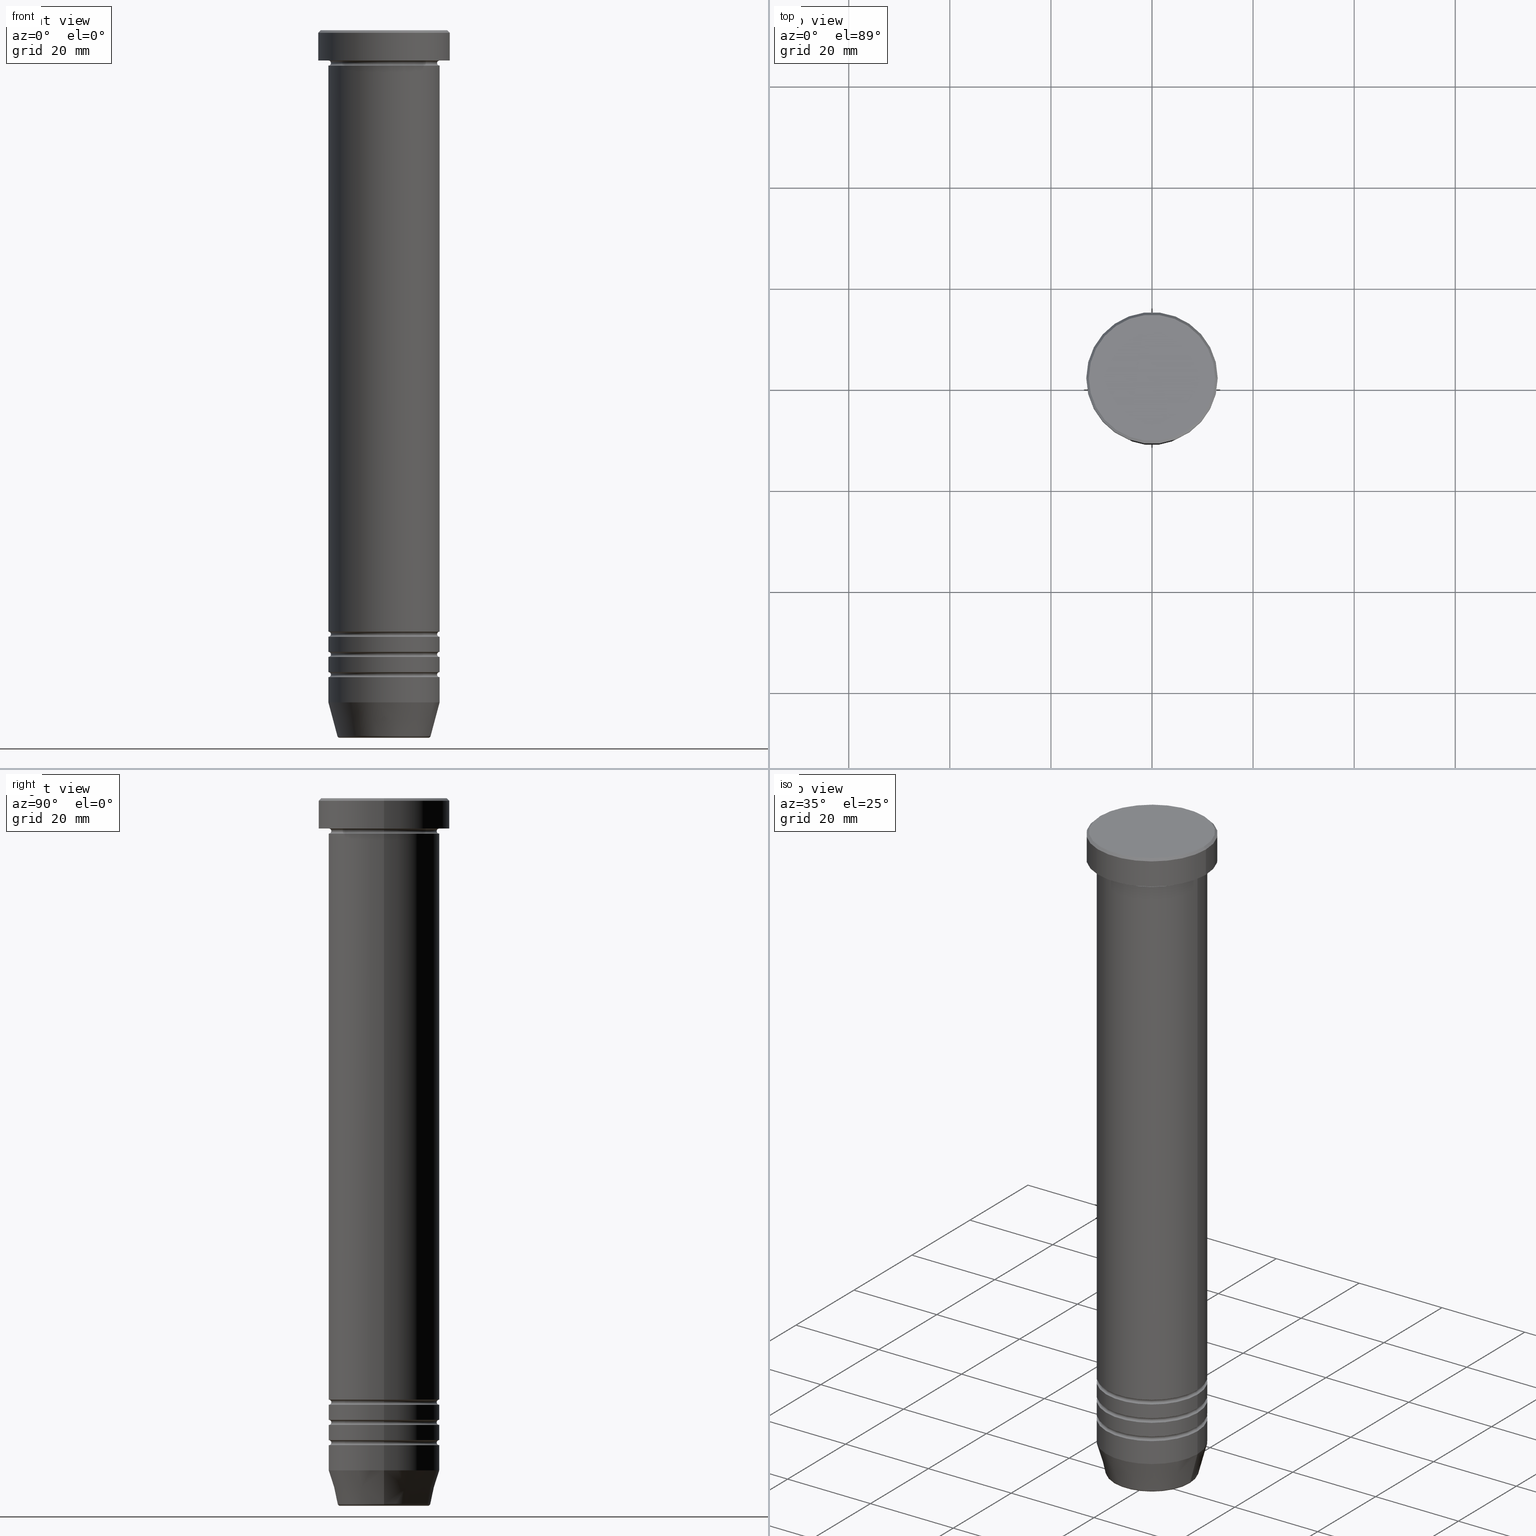
[diagram: canonical four-view strip — front | top / right | iso, engineering-drawing reading convention]
A machine part, canonical four-view strip (front | top / right | iso — engineering-drawing reading convention). The complete STEP part file that produces these views, byte-faithful:
ISO-10303-21;
HEADER;
FILE_DESCRIPTION (( 'STEP AP203' ),
    '1' );
FILE_NAME ('9eb8.STEP',
    '2024-01-02T20:28:39',
    ( '' ),
    ( '' ),
    'SwSTEP 2.0',
    'SolidWorks 2019',
    '' );
FILE_SCHEMA (( 'CONFIG_CONTROL_DESIGN' ));
ENDSEC;

DATA;
#1 = VERTEX_POINT ( 'NONE', #702 ) ;
#2 = ADVANCED_FACE ( 'NONE', ( #963 ), #528, .F. ) ;
#3 = CARTESIAN_POINT ( 'NONE',  ( -10.99999999999999822, 1.347111479062088207E-15, -123.0000000000000000 ) ) ;
#4 = ORIENTED_EDGE ( 'NONE', *, *, #241, .F. ) ;
#5 = FACE_OUTER_BOUND ( 'NONE', #313, .T. ) ;
#6 = DIRECTION ( 'NONE',  ( -1.000000000000000000, 1.224646799147353454E-16, 0.000000000000000000 ) ) ;
#7 = AXIS2_PLACEMENT_3D ( 'NONE', #558, #553, #458 ) ;
#8 = EDGE_LOOP ( 'NONE', ( #442, #188, #197, #396 ) ) ;
#9 = EDGE_CURVE ( 'NONE', #341, #1, #670, .T. ) ;
#10 = ORIENTED_EDGE ( 'NONE', *, *, #380, .F. ) ;
#11 = FACE_OUTER_BOUND ( 'NONE', #959, .T. ) ;
#12 = CARTESIAN_POINT ( 'NONE',  ( 0.000000000000000000, 0.000000000000000000, -30.00000000000000000 ) ) ;
#13 = ORIENTED_EDGE ( 'NONE', *, *, #419, .F. ) ;
#14 = EDGE_LOOP ( 'NONE', ( #366, #613, #991, #336 ) ) ;
#15 = DIRECTION ( 'NONE',  ( 1.000000000000000000, 0.000000000000000000, 0.000000000000000000 ) ) ;
#16 = EDGE_CURVE ( 'NONE', #350, #718, #1048, .T. ) ;
#17 = CONICAL_SURFACE ( 'NONE', #715, 9.124355652982123033, 0.2617993877991502960 ) ;
#18 = DIRECTION ( 'NONE',  ( 1.000000000000000000, 0.000000000000000000, 0.000000000000000000 ) ) ;
#19 = AXIS2_PLACEMENT_3D ( 'NONE', #932, #829, #1017 ) ;
#20 = VERTEX_POINT ( 'NONE', #299 ) ;
#21 = PERSON_AND_ORGANIZATION_ROLE ( 'design_supplier' ) ;
#22 = DIRECTION ( 'NONE',  ( -1.224646799147353207E-16, 1.000000000000000000, 0.000000000000000000 ) ) ;
#23 = CYLINDRICAL_SURFACE ( 'NONE', #275, 13.00000000000000000 ) ;
#24 = EDGE_CURVE ( 'NONE', #136, #493, #92, .T. ) ;
#25 = AXIS2_PLACEMENT_3D ( 'NONE', #379, #712, #158 ) ;
#26 = VERTEX_POINT ( 'NONE', #633 ) ;
#27 = CIRCLE ( 'NONE', #894, 0.5000000000000004441 ) ;
#28 = CIRCLE ( 'NONE', #243, 0.5000000000000004441 ) ;
#29 = CARTESIAN_POINT ( 'NONE',  ( 0.000000000000000000, 0.000000000000000000, 0.000000000000000000 ) ) ;
#30 = CYLINDRICAL_SURFACE ( 'NONE', #112, 10.99999999999999645 ) ;
#31 = ORIENTED_EDGE ( 'NONE', *, *, #133, .F. ) ;
#32 = CARTESIAN_POINT ( 'NONE',  ( -9.223655072137184163, 1.238341722557646807E-15, -139.6294095225512706 ) ) ;
#33 = CARTESIAN_POINT ( 'NONE',  ( 13.00000000000000000, 0.000000000000000000, -6.000000000000000000 ) ) ;
#34 = CIRCLE ( 'NONE', #506, 11.00000000000000000 ) ;
#35 = LOCAL_TIME ( 21, 28, 39.00000000000000000, #76 ) ;
#36 = EDGE_CURVE ( 'NONE', #610, #369, #223, .T. ) ;
#37 = DIRECTION ( 'NONE',  ( 1.000000000000000000, 0.000000000000000000, 0.000000000000000000 ) ) ;
#38 = CARTESIAN_POINT ( 'NONE',  ( 0.000000000000000000, 0.000000000000000000, 0.000000000000000000 ) ) ;
#39 = ORIENTED_EDGE ( 'NONE', *, *, #394, .T. ) ;
#40 = AXIS2_PLACEMENT_3D ( 'NONE', #933, #195, #772 ) ;
#41 = CIRCLE ( 'NONE', #639, 0.5000000000000004441 ) ;
#42 = EDGE_LOOP ( 'NONE', ( #1050, #809 ) ) ;
#43 = EDGE_CURVE ( 'NONE', #279, #608, #290, .T. ) ;
#44 = CYLINDRICAL_SURFACE ( 'NONE', #318, 11.00000000000000000 ) ;
#45 = APPROVAL_ROLE ( '' ) ;
#46 = EDGE_LOOP ( 'NONE', ( #13, #121, #345, #860 ) ) ;
#47 = EDGE_LOOP ( 'NONE', ( #325, #487 ) ) ;
#48 = DIRECTION ( 'NONE',  ( 1.000000000000000000, 0.000000000000000000, 0.000000000000000000 ) ) ;
#49 = DIRECTION ( 'NONE',  ( 1.000000000000000000, 0.000000000000000000, 0.000000000000000000 ) ) ;
#50 = EDGE_CURVE ( 'NONE', #522, #749, #110, .T. ) ;
#51 = EDGE_LOOP ( 'NONE', ( #39, #784, #848, #779 ) ) ;
#52 = CIRCLE ( 'NONE', #646, 0.5000000000000004441 ) ;
#53 = EDGE_LOOP ( 'NONE', ( #203, #117 ) ) ;
#54 = DIRECTION ( 'NONE',  ( -0.000000000000000000, -1.000000000000000000, -0.000000000000000000 ) ) ;
#55 = PLANE ( 'NONE',  #292 ) ;
#56 = SHAPE_DEFINITION_REPRESENTATION ( #422, #128 ) ;
#57 = DIRECTION ( 'NONE',  ( 0.000000000000000000, 0.000000000000000000, -1.000000000000000000 ) ) ;
#58 = ADVANCED_FACE ( 'NONE', ( #620 ), #224, .T. ) ;
#59 = AXIS2_PLACEMENT_3D ( 'NONE', #148, #57, #1043 ) ;
#60 = ORIENTED_EDGE ( 'NONE', *, *, #589, .F. ) ;
#61 = LINE ( 'NONE', #775, #469 ) ;
#62 = CIRCLE ( 'NONE', #619, 11.00000000000000000 ) ;
#63 = AXIS2_PLACEMENT_3D ( 'NONE', #510, #834, #277 ) ;
#64 = CARTESIAN_POINT ( 'NONE',  ( 0.000000000000000000, 0.000000000000000000, 0.000000000000000000 ) ) ;
#65 = CARTESIAN_POINT ( 'NONE',  ( 0.000000000000000000, 0.000000000000000000, -127.5000000000000000 ) ) ;
#66 = ADVANCED_FACE ( 'NONE', ( #222 ), #882, .F. ) ;
#67 = CARTESIAN_POINT ( 'NONE',  ( 0.000000000000000000, 0.000000000000000000, -119.0000000000000000 ) ) ;
#68 = CARTESIAN_POINT ( 'NONE',  ( 11.00000000000000000, 0.000000000000000000, -128.0000000000000000 ) ) ;
#69 = COORDINATED_UNIVERSAL_TIME_OFFSET ( 1, 0, .AHEAD. ) ;
#70 = UNCERTAINTY_MEASURE_WITH_UNIT (LENGTH_MEASURE( 1.000000000000000082E-05 ), #980, 'distance_accuracy_value', 'NONE');
#71 = DIRECTION ( 'NONE',  ( 0.000000000000000000, 0.000000000000000000, -1.000000000000000000 ) ) ;
#72 = APPROVAL ( #464, 'NEUR�EN�' ) ;
#73 = CIRCLE ( 'NONE', #268, 0.5000000000000004441 ) ;
#74 = CARTESIAN_POINT ( 'NONE',  ( 0.000000000000000000, 0.000000000000000000, -119.0000000000000000 ) ) ;
#75 = DIRECTION ( 'NONE',  ( -0.000000000000000000, -0.000000000000000000, 1.000000000000000000 ) ) ;
#76 = COORDINATED_UNIVERSAL_TIME_OFFSET ( 1, 0, .AHEAD. ) ;
#77 = TOROIDAL_SURFACE ( 'NONE', #671, 10.99999999999999645, 0.5000000000000000000 ) ;
#78 = ORIENTED_EDGE ( 'NONE', *, *, #680, .T. ) ;
#79 = AXIS2_PLACEMENT_3D ( 'NONE', #64, #232, #857 ) ;
#80 = LINE ( 'NONE', #721, #855 ) ;
#81 = ORIENTED_EDGE ( 'NONE', *, *, #1033, .F. ) ;
#82 = DIRECTION ( 'NONE',  ( 1.000000000000000000, 0.000000000000000000, 0.000000000000000000 ) ) ;
#83 = DIRECTION ( 'NONE',  ( 0.000000000000000000, 0.000000000000000000, -1.000000000000000000 ) ) ;
#84 = ORIENTED_EDGE ( 'NONE', *, *, #507, .F. ) ;
#85 = DIRECTION ( 'NONE',  ( -0.000000000000000000, -0.000000000000000000, 1.000000000000000000 ) ) ;
#86 = VERTEX_POINT ( 'NONE', #289 ) ;
#87 = DIRECTION ( 'NONE',  ( -0.000000000000000000, -0.000000000000000000, 1.000000000000000000 ) ) ;
#88 = CARTESIAN_POINT ( 'NONE',  ( 0.000000000000000000, 0.000000000000000000, -6.499999999999999112 ) ) ;
#89 = EDGE_CURVE ( 'NONE', #86, #522, #794, .T. ) ;
#90 = ORIENTED_EDGE ( 'NONE', *, *, #730, .F. ) ;
#91 = CARTESIAN_POINT ( 'NONE',  ( 0.000000000000000000, 0.000000000000000000, 0.000000000000000000 ) ) ;
#92 = CIRCLE ( 'NONE', #476, 11.00000000000000000 ) ;
#93 = LINE ( 'NONE', #996, #1003 ) ;
#94 = CIRCLE ( 'NONE', #709, 11.00000000000000000 ) ;
#95 = EDGE_LOOP ( 'NONE', ( #1019, #1054 ) ) ;
#96 = DATE_AND_TIME ( #676, #814 ) ;
#97 = DIRECTION ( 'NONE',  ( 0.000000000000000000, -1.000000000000000000, 0.000000000000000000 ) ) ;
#98 = EDGE_CURVE ( 'NONE', #20, #246, #863, .T. ) ;
#99 = DIRECTION ( 'NONE',  ( -0.000000000000000000, -0.000000000000000000, 1.000000000000000000 ) ) ;
#100 = CARTESIAN_POINT ( 'NONE',  ( 0.000000000000000000, 0.000000000000000000, -132.9999999999999716 ) ) ;
#101 = ORIENTED_EDGE ( 'NONE', *, *, #776, .T. ) ;
#102 = COORDINATED_UNIVERSAL_TIME_OFFSET ( 1, 0, .AHEAD. ) ;
#103 = EDGE_CURVE ( 'NONE', #698, #718, #80, .T. ) ;
#104 = CARTESIAN_POINT ( 'NONE',  ( 0.000000000000000000, 0.000000000000000000, 0.000000000000000000 ) ) ;
#105 = DIRECTION ( 'NONE',  ( -0.000000000000000000, -0.000000000000000000, 1.000000000000000000 ) ) ;
#106 = TOROIDAL_SURFACE ( 'NONE', #170, 11.00000000000000000, 0.5000000000000000000 ) ;
#107 = ORIENTED_EDGE ( 'NONE', *, *, #202, .T. ) ;
#108 = CARTESIAN_POINT ( 'NONE',  ( 0.000000000000000000, 0.000000000000000000, -6.000000000000000000 ) ) ;
#109 = PLANE ( 'NONE',  #738 ) ;
#110 = CIRCLE ( 'NONE', #706, 0.5000000000000004441 ) ;
#111 = ORIENTED_EDGE ( 'NONE', *, *, #776, .F. ) ;
#112 = AXIS2_PLACEMENT_3D ( 'NONE', #281, #126, #839 ) ;
#113 = APPROVAL_STATUS ( 'not_yet_approved' ) ;
#114 = TOROIDAL_SURFACE ( 'NONE', #348, 8.740692158992647620, 0.5000000000000000000 ) ;
#115 = LINE ( 'NONE', #266, #700 ) ;
#116 = FACE_OUTER_BOUND ( 'NONE', #623, .T. ) ;
#117 = ORIENTED_EDGE ( 'NONE', *, *, #202, .F. ) ;
#118 = ADVANCED_FACE ( 'NONE', ( #139 ), #754, .F. ) ;
#119 = DIRECTION ( 'NONE',  ( 1.000000000000000000, 0.000000000000000000, 0.000000000000000000 ) ) ;
#120 = CARTESIAN_POINT ( 'NONE',  ( 10.99999999999999645, 0.000000000000000000, -123.5000000000000000 ) ) ;
#121 = ORIENTED_EDGE ( 'NONE', *, *, #1009, .T. ) ;
#122 = AXIS2_PLACEMENT_3D ( 'NONE', #806, #87, #734 ) ;
#123 = SECURITY_CLASSIFICATION ( '', '', #669 ) ;
#124 = EDGE_CURVE ( 'NONE', #749, #673, #177, .T. ) ;
#125 = ORIENTED_EDGE ( 'NONE', *, *, #589, .T. ) ;
#126 = DIRECTION ( 'NONE',  ( -0.000000000000000000, -0.000000000000000000, 1.000000000000000000 ) ) ;
#127 = VERTEX_POINT ( 'NONE', #295 ) ;
#128 = ADVANCED_BREP_SHAPE_REPRESENTATION ( '9eb8', ( #975, #280, #218 ), #361 ) ;
#129 = AXIS2_PLACEMENT_3D ( 'NONE', #320, #911, #826 ) ;
#130 = AXIS2_PLACEMENT_3D ( 'NONE', #785, #215, #49 ) ;
#131 = ORIENTED_EDGE ( 'NONE', *, *, #972, .T. ) ;
#132 = DIRECTION ( 'NONE',  ( 0.000000000000000000, 0.000000000000000000, -1.000000000000000000 ) ) ;
#133 = EDGE_CURVE ( 'NONE', #851, #341, #548, .T. ) ;
#134 = DIRECTION ( 'NONE',  ( 1.000000000000000000, 0.000000000000000000, 0.000000000000000000 ) ) ;
#135 = EDGE_LOOP ( 'NONE', ( #831, #1032, #421, #685 ) ) ;
#136 = VERTEX_POINT ( 'NONE', #655 ) ;
#137 = ADVANCED_FACE ( 'NONE', ( #724 ), #990, .T. ) ;
#138 = DIRECTION ( 'NONE',  ( 0.000000000000000000, 0.000000000000000000, -1.000000000000000000 ) ) ;
#139 = FACE_OUTER_BOUND ( 'NONE', #896, .T. ) ;
#140 = APPROVAL_PERSON_ORGANIZATION ( #821, #560, #45 ) ;
#141 = EDGE_LOOP ( 'NONE', ( #696, #616, #929, #692 ) ) ;
#142 = FACE_OUTER_BOUND ( 'NONE', #412, .T. ) ;
#143 = CARTESIAN_POINT ( 'NONE',  ( 11.00000000000000000, 0.000000000000000000, 0.000000000000000000 ) ) ;
#144 = VERTEX_POINT ( 'NONE', #249 ) ;
#145 = CARTESIAN_POINT ( 'NONE',  ( 0.000000000000000000, 0.000000000000000000, -30.00000000000000000 ) ) ;
#146 = AXIS2_PLACEMENT_3D ( 'NONE', #843, #752, #339 ) ;
#147 = CARTESIAN_POINT ( 'NONE',  ( 11.00000000000000000, 0.000000000000000000, -30.00000000000000000 ) ) ;
#148 = CARTESIAN_POINT ( 'NONE',  ( 0.000000000000000000, 0.000000000000000000, -123.5000000000000000 ) ) ;
#149 = EDGE_CURVE ( 'NONE', #86, #354, #875, .T. ) ;
#150 = DIRECTION ( 'NONE',  ( 1.000000000000000000, 0.000000000000000000, 0.000000000000000000 ) ) ;
#151 = CARTESIAN_POINT ( 'NONE',  ( -10.99999999999999822, 1.347111479062088405E-15, -124.0000000000000000 ) ) ;
#152 = DIRECTION ( 'NONE',  ( 0.000000000000000000, -0.000000000000000000, 1.000000000000000000 ) ) ;
#153 = APPROVAL_DATE_TIME ( #555, #72 ) ;
#154 = DIRECTION ( 'NONE',  ( 0.000000000000000000, 0.000000000000000000, -1.000000000000000000 ) ) ;
#155 = CIRCLE ( 'NONE', #122, 10.99999999999999289 ) ;
#156 = ORIENTED_EDGE ( 'NONE', *, *, #954, .T. ) ;
#157 = DIRECTION ( 'NONE',  ( -0.000000000000000000, -0.000000000000000000, 1.000000000000000000 ) ) ;
#158 = DIRECTION ( 'NONE',  ( 1.000000000000000000, 0.000000000000000000, 0.000000000000000000 ) ) ;
#159 = AXIS2_PLACEMENT_3D ( 'NONE', #899, #83, #903 ) ;
#160 = CARTESIAN_POINT ( 'NONE',  ( 10.99999999999999645, 0.000000000000000000, 0.000000000000000000 ) ) ;
#161 = AXIS2_PLACEMENT_3D ( 'NONE', #535, #862, #138 ) ;
#162 = CYLINDRICAL_SURFACE ( 'NONE', #931, 11.00000000000000000 ) ;
#163 = ORIENTED_EDGE ( 'NONE', *, *, #680, .F. ) ;
#164 = CARTESIAN_POINT ( 'NONE',  ( 0.000000000000000000, 0.000000000000000000, -123.5000000000000000 ) ) ;
#165 = ADVANCED_FACE ( 'NONE', ( #404, #499 ), #238, .T. ) ;
#166 = CARTESIAN_POINT ( 'NONE',  ( 0.000000000000000000, 0.000000000000000000, -124.0000000000000000 ) ) ;
#167 = EDGE_LOOP ( 'NONE', ( #428, #859, #969, #81 ) ) ;
#168 = ORIENTED_EDGE ( 'NONE', *, *, #380, .T. ) ;
#169 = DIRECTION ( 'NONE',  ( 0.000000000000000000, 0.000000000000000000, -1.000000000000000000 ) ) ;
#170 = AXIS2_PLACEMENT_3D ( 'NONE', #918, #276, #927 ) ;
#171 = LOCAL_TIME ( 21, 28, 39.00000000000000000, #69 ) ;
#172 = DIRECTION ( 'NONE',  ( 1.000000000000000000, 0.000000000000000000, 0.000000000000000000 ) ) ;
#173 = CC_DESIGN_DATE_AND_TIME_ASSIGNMENT ( #584, #1008, ( #123 ) ) ;
#174 = VERTEX_POINT ( 'NONE', #570 ) ;
#175 = EDGE_CURVE ( 'NONE', #279, #144, #193, .T. ) ;
#176 = DIRECTION ( 'NONE',  ( 1.000000000000000000, 0.000000000000000000, 0.000000000000000000 ) ) ;
#177 = CIRCLE ( 'NONE', #390, 10.49999999999999467 ) ;
#178 = DIRECTION ( 'NONE',  ( -0.000000000000000000, -0.000000000000000000, 1.000000000000000000 ) ) ;
#179 = CIRCLE ( 'NONE', #130, 11.00000000000000000 ) ;
#180 = ORIENTED_EDGE ( 'NONE', *, *, #549, .F. ) ;
#181 = EDGE_CURVE ( 'NONE', #1029, #718, #585, .T. ) ;
#182 = FACE_OUTER_BOUND ( 'NONE', #321, .T. ) ;
#183 = CARTESIAN_POINT ( 'NONE',  ( 0.000000000000000000, 13.00000000000000000, -6.000000000000000000 ) ) ;
#184 = VERTEX_POINT ( 'NONE', #1056 ) ;
#185 = PERSON_AND_ORGANIZATION_ROLE ( 'creator' ) ;
#186 = DIRECTION ( 'NONE',  ( 0.2588190451025216277, 0.000000000000000000, 0.9659258262890679791 ) ) ;
#187 = TOROIDAL_SURFACE ( 'NONE', #559, 10.99999999999999645, 0.5000000000000000000 ) ;
#188 = ORIENTED_EDGE ( 'NONE', *, *, #248, .T. ) ;
#189 = DIRECTION ( 'NONE',  ( -0.000000000000000000, -0.000000000000000000, 1.000000000000000000 ) ) ;
#190 = EDGE_CURVE ( 'NONE', #200, #913, #983, .T. ) ;
#191 = CARTESIAN_POINT ( 'NONE',  ( 0.000000000000000000, 0.000000000000000000, -119.5000000000000000 ) ) ;
#192 = ORIENTED_EDGE ( 'NONE', *, *, #879, .F. ) ;
#193 = CIRCLE ( 'NONE', #1049, 10.49999999999999822 ) ;
#194 = CYLINDRICAL_SURFACE ( 'NONE', #611, 10.99999999999999645 ) ;
#195 = DIRECTION ( 'NONE',  ( -0.000000000000000000, -0.000000000000000000, 1.000000000000000000 ) ) ;
#196 = EDGE_CURVE ( 'NONE', #213, #608, #644, .T. ) ;
#197 = ORIENTED_EDGE ( 'NONE', *, *, #283, .F. ) ;
#198 = CARTESIAN_POINT ( 'NONE',  ( -10.99999999999999289, 1.347111479062087813E-15, -119.0000000000000000 ) ) ;
#199 = DIRECTION ( 'NONE',  ( -0.2588190451025216277, 3.169619151431776035E-17, 0.9659258262890679791 ) ) ;
#200 = VERTEX_POINT ( 'NONE', #260 ) ;
#201 = AXIS2_PLACEMENT_3D ( 'NONE', #91, #157, #976 ) ;
#202 = EDGE_CURVE ( 'NONE', #213, #588, #62, .T. ) ;
#203 = ORIENTED_EDGE ( 'NONE', *, *, #954, .F. ) ;
#204 = DIRECTION ( 'NONE',  ( 1.000000000000000000, 0.000000000000000000, 0.000000000000000000 ) ) ;
#205 = CARTESIAN_POINT ( 'NONE',  ( -11.00000000000000000, 1.347111479062088405E-15, -132.9999999999999716 ) ) ;
#206 = AXIS2_PLACEMENT_3D ( 'NONE', #1023, #264, #519 ) ;
#207 = CIRCLE ( 'NONE', #689, 12.49999999999999645 ) ;
#208 = EDGE_CURVE ( 'NONE', #588, #778, #735, .T. ) ;
#209 = ORIENTED_EDGE ( 'NONE', *, *, #695, .T. ) ;
#210 = FACE_OUTER_BOUND ( 'NONE', #884, .T. ) ;
#211 = CARTESIAN_POINT ( 'NONE',  ( 10.49999999999999467, 0.000000000000000000, -123.5000000000000000 ) ) ;
#212 = CARTESIAN_POINT ( 'NONE',  ( 0.000000000000000000, 1.102182119232618069E-14, -140.0000000000000000 ) ) ;
#213 = VERTEX_POINT ( 'NONE', #587 ) ;
#214 = DIRECTION ( 'NONE',  ( -1.224646799147353207E-16, 1.000000000000000000, 0.000000000000000000 ) ) ;
#215 = DIRECTION ( 'NONE',  ( -0.000000000000000000, -0.000000000000000000, 1.000000000000000000 ) ) ;
#216 = ORIENTED_EDGE ( 'NONE', *, *, #534, .T. ) ;
#217 = VECTOR ( 'NONE', #370, 1000.000000000000000 ) ;
#218 = AXIS2_PLACEMENT_3D ( 'NONE', #930, #609, #615 ) ;
#219 = ORIENTED_EDGE ( 'NONE', *, *, #539, .F. ) ;
#220 = CARTESIAN_POINT ( 'NONE',  ( 0.000000000000000000, 0.000000000000000000, -140.0000000000000000 ) ) ;
#221 = DIRECTION ( 'NONE',  ( -1.000000000000000000, 1.224646799147353454E-16, 0.000000000000000000 ) ) ;
#222 = FACE_OUTER_BOUND ( 'NONE', #47, .T. ) ;
#223 = CIRCLE ( 'NONE', #25, 11.00000000000000000 ) ;
#224 = TOROIDAL_SURFACE ( 'NONE', #7, 8.740692158992647620, 0.5000000000000000000 ) ;
#225 = CARTESIAN_POINT ( 'NONE',  ( 10.99999999999999645, 0.000000000000000000, -119.5000000000000000 ) ) ;
#226 = CIRCLE ( 'NONE', #63, 0.5000000000000004441 ) ;
#227 = DIRECTION ( 'NONE',  ( 1.000000000000000000, 0.000000000000000000, 0.000000000000000000 ) ) ;
#228 = DIRECTION ( 'NONE',  ( -1.000000000000000000, 1.224646799147353454E-16, 0.000000000000000000 ) ) ;
#229 = ADVANCED_FACE ( 'NONE', ( #329 ), #162, .T. ) ;
#230 = CALENDAR_DATE ( 2024, 2, 1 ) ;
#231 = DIRECTION ( 'NONE',  ( -1.000000000000000000, 0.000000000000000000, 0.000000000000000000 ) ) ;
#232 = DIRECTION ( 'NONE',  ( 0.000000000000000000, 0.000000000000000000, -1.000000000000000000 ) ) ;
#233 = DIRECTION ( 'NONE',  ( 1.000000000000000000, 0.000000000000000000, 0.000000000000000000 ) ) ;
#234 = EDGE_CURVE ( 'NONE', #1, #341, #424, .T. ) ;
#235 = FACE_OUTER_BOUND ( 'NONE', #135, .T. ) ;
#236 = TOROIDAL_SURFACE ( 'NONE', #597, 10.99999999999999645, 0.5000000000000000000 ) ;
#237 = DIRECTION ( 'NONE',  ( -0.000000000000000000, -0.000000000000000000, 1.000000000000000000 ) ) ;
#238 = PLANE ( 'NONE',  #638 ) ;
#239 = EDGE_LOOP ( 'NONE', ( #437, #168 ) ) ;
#240 = DIRECTION ( 'NONE',  ( 0.000000000000000000, 0.000000000000000000, -1.000000000000000000 ) ) ;
#241 = EDGE_CURVE ( 'NONE', #841, #571, #477, .T. ) ;
#242 = CARTESIAN_POINT ( 'NONE',  ( -11.00000000000000000, 1.347111479062088405E-15, -6.999999999999999112 ) ) ;
#243 = AXIS2_PLACEMENT_3D ( 'NONE', #711, #364, #1042 ) ;
#244 = DIRECTION ( 'NONE',  ( 1.000000000000000000, 0.000000000000000000, 0.000000000000000000 ) ) ;
#245 = ORIENTED_EDGE ( 'NONE', *, *, #486, .T. ) ;
#246 = VERTEX_POINT ( 'NONE', #485 ) ;
#247 = DIRECTION ( 'NONE',  ( 0.000000000000000000, 0.000000000000000000, -1.000000000000000000 ) ) ;
#248 = EDGE_CURVE ( 'NONE', #851, #564, #93, .T. ) ;
#249 = CARTESIAN_POINT ( 'NONE',  ( 10.49999999999999822, 0.000000000000000000, -6.499999999999999112 ) ) ;
#250 = ORIENTED_EDGE ( 'NONE', *, *, #234, .F. ) ;
#251 = CIRCLE ( 'NONE', #846, 10.99999999999999822 ) ;
#252 = EDGE_LOOP ( 'NONE', ( #330, #517, #4, #60 ) ) ;
#253 = DIRECTION ( 'NONE',  ( -1.000000000000000000, 0.000000000000000000, 0.000000000000000000 ) ) ;
#254 = AXIS2_PLACEMENT_3D ( 'NONE', #220, #132, #964 ) ;
#255 = DIRECTION ( 'NONE',  ( -0.000000000000000000, -0.000000000000000000, 1.000000000000000000 ) ) ;
#256 = ADVANCED_FACE ( 'NONE', ( #581 ), #291, .T. ) ;
#257 = EDGE_LOOP ( 'NONE', ( #192, #285, #274, #78 ) ) ;
#258 = CARTESIAN_POINT ( 'NONE',  ( 0.000000000000000000, 0.000000000000000000, -6.499999999999999112 ) ) ;
#259 = VECTOR ( 'NONE', #563, 1000.000000000000000 ) ;
#260 = CARTESIAN_POINT ( 'NONE',  ( 10.99999999999999289, 0.000000000000000000, -127.0000000000000000 ) ) ;
#261 = CIRCLE ( 'NONE', #1020, 0.5000000000000004441 ) ;
#262 = ORIENTED_EDGE ( 'NONE', *, *, #181, .T. ) ;
#263 = DIRECTION ( 'NONE',  ( -0.000000000000000000, -0.000000000000000000, 1.000000000000000000 ) ) ;
#264 = DIRECTION ( 'NONE',  ( -0.000000000000000000, -0.000000000000000000, 1.000000000000000000 ) ) ;
#265 = ORIENTED_EDGE ( 'NONE', *, *, #208, .F. ) ;
#266 = CARTESIAN_POINT ( 'NONE',  ( 9.124355652982123033, 0.000000000000000000, -140.0000000000000000 ) ) ;
#267 = DIRECTION ( 'NONE',  ( 1.000000000000000000, 0.000000000000000000, 0.000000000000000000 ) ) ;
#268 = AXIS2_PLACEMENT_3D ( 'NONE', #769, #271, #512 ) ;
#269 = ORIENTED_EDGE ( 'NONE', *, *, #471, .F. ) ;
#270 = EDGE_CURVE ( 'NONE', #369, #1, #27, .T. ) ;
#271 = DIRECTION ( 'NONE',  ( -0.000000000000000000, -1.000000000000000000, -0.000000000000000000 ) ) ;
#272 = CYLINDRICAL_SURFACE ( 'NONE', #836, 13.00000000000000000 ) ;
#273 = VECTOR ( 'NONE', #75, 1000.000000000000000 ) ;
#274 = ORIENTED_EDGE ( 'NONE', *, *, #926, .T. ) ;
#275 = AXIS2_PLACEMENT_3D ( 'NONE', #344, #1006, #441 ) ;
#276 = DIRECTION ( 'NONE',  ( 0.000000000000000000, 0.000000000000000000, -1.000000000000000000 ) ) ;
#277 = DIRECTION ( 'NONE',  ( -1.000000000000000000, 1.224646799147353454E-16, 0.000000000000000000 ) ) ;
#278 = ORIENTED_EDGE ( 'NONE', *, *, #433, .F. ) ;
#279 = VERTEX_POINT ( 'NONE', #650 ) ;
#280 = MANIFOLD_SOLID_BREP ( 'Zaoblit5', #513 ) ;
#281 = CARTESIAN_POINT ( 'NONE',  ( 0.000000000000000000, 0.000000000000000000, 0.000000000000000000 ) ) ;
#282 = ORIENTED_EDGE ( 'NONE', *, *, #614, .T. ) ;
#283 = EDGE_CURVE ( 'NONE', #246, #564, #786, .T. ) ;
#284 = AXIS2_PLACEMENT_3D ( 'NONE', #765, #263, #37 ) ;
#285 = ORIENTED_EDGE ( 'NONE', *, *, #241, .T. ) ;
#286 = CARTESIAN_POINT ( 'NONE',  ( 0.000000000000000000, 0.000000000000000000, -6.499999999999999112 ) ) ;
#287 = CARTESIAN_POINT ( 'NONE',  ( 0.000000000000000000, 0.000000000000000000, -127.5000000000000000 ) ) ;
#288 = APPROVAL_DATE_TIME ( #951, #560 ) ;
#289 = CARTESIAN_POINT ( 'NONE',  ( 11.00000000000000000, 0.000000000000000000, -132.9999999999999716 ) ) ;
#290 = CIRCLE ( 'NONE', #892, 0.5000000000000004441 ) ;
#291 = CONICAL_SURFACE ( 'NONE', #129, 12.49999999999999645, 0.7853981633974431720 ) ;
#292 = AXIS2_PLACEMENT_3D ( 'NONE', #707, #294, #955 ) ;
#293 = ORIENTED_EDGE ( 'NONE', *, *, #762, .F. ) ;
#294 = DIRECTION ( 'NONE',  ( 0.000000000000000000, 0.000000000000000000, -1.000000000000000000 ) ) ;
#295 = CARTESIAN_POINT ( 'NONE',  ( 8.740692158992647620, 0.000000000000000000, -140.0000000000000000 ) ) ;
#296 = ORIENTED_EDGE ( 'NONE', *, *, #883, .F. ) ;
#297 = ADVANCED_FACE ( 'NONE', ( #591 ), #30, .T. ) ;
#298 = CARTESIAN_POINT ( 'NONE',  ( 0.000000000000000000, 0.000000000000000000, -6.000000000000000000 ) ) ;
#299 = CARTESIAN_POINT ( 'NONE',  ( 10.99999999999999289, 0.000000000000000000, -119.0000000000000000 ) ) ;
#300 = TOROIDAL_SURFACE ( 'NONE', #781, 10.99999999999999645, 0.5000000000000000000 ) ;
#301 = DIRECTION ( 'NONE',  ( -1.000000000000000000, 0.000000000000000000, 0.000000000000000000 ) ) ;
#302 = ADVANCED_FACE ( 'NONE', ( #425 ), #109, .T. ) ;
#303 = DIRECTION ( 'NONE',  ( 1.000000000000000000, 0.000000000000000000, 0.000000000000000000 ) ) ;
#304 = ORIENTED_EDGE ( 'NONE', *, *, #653, .T. ) ;
#305 = AXIS2_PLACEMENT_3D ( 'NONE', #971, #453, #783 ) ;
#306 = CIRCLE ( 'NONE', #822, 13.00000000000000000 ) ;
#307 = ORIENTED_EDGE ( 'NONE', *, *, #270, .T. ) ;
#308 = CARTESIAN_POINT ( 'NONE',  ( -11.00000000000000000, 0.000000000000000000, -6.500000000000000888 ) ) ;
#309 = DIRECTION ( 'NONE',  ( 0.000000000000000000, 0.000000000000000000, -1.000000000000000000 ) ) ;
#310 = ADVANCED_FACE ( 'NONE', ( #598 ), #272, .T. ) ;
#311 = CALENDAR_DATE ( 2024, 2, 1 ) ;
#312 = DIRECTION ( 'NONE',  ( -0.000000000000000000, -0.000000000000000000, 1.000000000000000000 ) ) ;
#313 = EDGE_LOOP ( 'NONE', ( #296, #216, #853, #743 ) ) ;
#314 = DIRECTION ( 'NONE',  ( 1.000000000000000000, 0.000000000000000000, 0.000000000000000000 ) ) ;
#315 = CARTESIAN_POINT ( 'NONE',  ( 0.000000000000000000, 0.000000000000000000, -0.5000000000000073275 ) ) ;
#316 = ADVANCED_FACE ( 'NONE', ( #525 ), #23, .T. ) ;
#317 = ORIENTED_EDGE ( 'NONE', *, *, #208, .T. ) ;
#318 = AXIS2_PLACEMENT_3D ( 'NONE', #357, #693, #150 ) ;
#319 = FACE_OUTER_BOUND ( 'NONE', #844, .T. ) ;
#320 = CARTESIAN_POINT ( 'NONE',  ( 0.000000000000000000, 0.000000000000000000, 0.000000000000000000 ) ) ;
#321 = EDGE_LOOP ( 'NONE', ( #944, #810, #1013, #572 ) ) ;
#322 = CARTESIAN_POINT ( 'NONE',  ( -13.00000000000000000, 1.592040838891559095E-15, -0.5000000000000073275 ) ) ;
#323 = DIRECTION ( 'NONE',  ( -0.000000000000000000, -1.000000000000000000, -0.000000000000000000 ) ) ;
#324 = DIRECTION ( 'NONE',  ( -1.000000000000000000, 0.000000000000000000, -0.000000000000000000 ) ) ;
#325 = ORIENTED_EDGE ( 'NONE', *, *, #912, .T. ) ;
#326 = ORIENTED_EDGE ( 'NONE', *, *, #175, .T. ) ;
#327 = ADVANCED_FACE ( 'NONE', ( #694 ), #514, .T. ) ;
#328 = CARTESIAN_POINT ( 'NONE',  ( 0.000000000000000000, 0.000000000000000000, -6.000000000000000000 ) ) ;
#329 = FACE_OUTER_BOUND ( 'NONE', #511, .T. ) ;
#330 = ORIENTED_EDGE ( 'NONE', *, *, #190, .T. ) ;
#331 = ORIENTED_EDGE ( 'NONE', *, *, #574, .T. ) ;
#332 = DIRECTION ( 'NONE',  ( -0.7071067811865439090, 0.000000000000000000, -0.7071067811865512365 ) ) ;
#333 = TOROIDAL_SURFACE ( 'NONE', #905, 10.99999999999999645, 0.5000000000000000000 ) ;
#334 = APPROVAL_PERSON_ORGANIZATION ( #992, #72, #791 ) ;
#335 = DIRECTION ( 'NONE',  ( -0.000000000000000000, -0.000000000000000000, 1.000000000000000000 ) ) ;
#336 = ORIENTED_EDGE ( 'NONE', *, *, #926, .F. ) ;
#337 = FACE_OUTER_BOUND ( 'NONE', #656, .T. ) ;
#338 = AXIS2_PLACEMENT_3D ( 'NONE', #626, #956, #6 ) ;
#339 = DIRECTION ( 'NONE',  ( 1.000000000000000000, 0.000000000000000000, 0.000000000000000000 ) ) ;
#340 = AXIS2_PLACEMENT_3D ( 'NONE', #120, #436, #690 ) ;
#341 = VERTEX_POINT ( 'NONE', #928 ) ;
#342 = COORDINATED_UNIVERSAL_TIME_OFFSET ( 1, 0, .AHEAD. ) ;
#343 = DIRECTION ( 'NONE',  ( -0.000000000000000000, -0.000000000000000000, 1.000000000000000000 ) ) ;
#344 = CARTESIAN_POINT ( 'NONE',  ( 0.000000000000000000, 0.000000000000000000, 0.000000000000000000 ) ) ;
#345 = ORIENTED_EDGE ( 'NONE', *, *, #758, .T. ) ;
#346 = ADVANCED_FACE ( 'NONE', ( #116 ), #530, .F. ) ;
#347 = LINE ( 'NONE', #756, #1014 ) ;
#348 = AXIS2_PLACEMENT_3D ( 'NONE', #741, #649, #397 ) ;
#349 = DIRECTION ( 'NONE',  ( 1.000000000000000000, 0.000000000000000000, 0.000000000000000000 ) ) ;
#350 = VERTEX_POINT ( 'NONE', #33 ) ;
#351 = LINE ( 'NONE', #687, #764 ) ;
#352 = EDGE_CURVE ( 'NONE', #673, #749, #496, .T. ) ;
#353 = DIRECTION ( 'NONE',  ( 1.000000000000000000, 0.000000000000000000, 0.000000000000000000 ) ) ;
#354 = VERTEX_POINT ( 'NONE', #205 ) ;
#355 = CIRCLE ( 'NONE', #375, 10.99999999999999289 ) ;
#356 = ORIENTED_EDGE ( 'NONE', *, *, #501, .F. ) ;
#357 = CARTESIAN_POINT ( 'NONE',  ( 0.000000000000000000, 0.000000000000000000, 0.000000000000000000 ) ) ;
#358 = ADVANCED_FACE ( 'NONE', ( #1011 ), #943, .T. ) ;
#359 = DIRECTION ( 'NONE',  ( 1.000000000000000000, 0.000000000000000000, 0.000000000000000000 ) ) ;
#360 = ORIENTED_EDGE ( 'NONE', *, *, #629, .T. ) ;
#361 =( GEOMETRIC_REPRESENTATION_CONTEXT ( 3 ) GLOBAL_UNCERTAINTY_ASSIGNED_CONTEXT ( ( #70 ) ) GLOBAL_UNIT_ASSIGNED_CONTEXT ( ( #980, #489, #986 ) ) REPRESENTATION_CONTEXT ( 'NONE', 'WORKASPACE' ) );
#362 = ORIENTED_EDGE ( 'NONE', *, *, #845, .T. ) ;
#363 = DIRECTION ( 'NONE',  ( 0.000000000000000000, 0.000000000000000000, -1.000000000000000000 ) ) ;
#364 = DIRECTION ( 'NONE',  ( 0.000000000000000000, -1.000000000000000000, 0.000000000000000000 ) ) ;
#365 = CC_DESIGN_PERSON_AND_ORGANIZATION_ASSIGNMENT ( #662, #21, ( #1015 ) ) ;
#366 = ORIENTED_EDGE ( 'NONE', *, *, #622, .T. ) ;
#367 = TOROIDAL_SURFACE ( 'NONE', #284, 10.99999999999999645, 0.5000000000000000000 ) ;
#368 = MECHANICAL_CONTEXT ( 'NONE', #389, 'mechanical' ) ;
#369 = VERTEX_POINT ( 'NONE', #766 ) ;
#370 = DIRECTION ( 'NONE',  ( -0.000000000000000000, -0.000000000000000000, 1.000000000000000000 ) ) ;
#371 = DIRECTION ( 'NONE',  ( 1.000000000000000000, 0.000000000000000000, 0.000000000000000000 ) ) ;
#372 = DIRECTION ( 'NONE',  ( 1.000000000000000000, 0.000000000000000000, 0.000000000000000000 ) ) ;
#373 = AXIS2_PLACEMENT_3D ( 'NONE', #191, #105, #349 ) ;
#374 = ADVANCED_FACE ( 'NONE', ( #684 ), #77, .F. ) ;
#375 = AXIS2_PLACEMENT_3D ( 'NONE', #74, #1047, #625 ) ;
#376 = ORIENTED_EDGE ( 'NONE', *, *, #883, .T. ) ;
#377 = DIRECTION ( 'NONE',  ( -0.000000000000000000, -0.000000000000000000, 1.000000000000000000 ) ) ;
#378 = DIRECTION ( 'NONE',  ( 0.000000000000000000, 0.000000000000000000, -1.000000000000000000 ) ) ;
#379 = CARTESIAN_POINT ( 'NONE',  ( 0.000000000000000000, 0.000000000000000000, -120.0000000000000000 ) ) ;
#380 = EDGE_CURVE ( 'NONE', #564, #246, #601, .T. ) ;
#381 = DIRECTION ( 'NONE',  ( -0.000000000000000000, -0.000000000000000000, 1.000000000000000000 ) ) ;
#382 = CARTESIAN_POINT ( 'NONE',  ( 0.000000000000000000, 0.000000000000000000, -140.0000000000000000 ) ) ;
#383 = DIRECTION ( 'NONE',  ( -1.224646799147353207E-16, 1.000000000000000000, 0.000000000000000000 ) ) ;
#384 = CIRCLE ( 'NONE', #524, 10.49999999999999467 ) ;
#385 = PRODUCT_RELATED_PRODUCT_CATEGORY ( 'detail', '', ( #392 ) ) ;
#386 = DIRECTION ( 'NONE',  ( 1.000000000000000000, 0.000000000000000000, 0.000000000000000000 ) ) ;
#387 = CARTESIAN_POINT ( 'NONE',  ( 0.000000000000000000, 11.00000000000000000, -30.00000000000000000 ) ) ;
#388 = DIRECTION ( 'NONE',  ( -0.000000000000000000, -0.000000000000000000, 1.000000000000000000 ) ) ;
#389 = APPLICATION_CONTEXT ( 'configuration controlled 3d designs of mechanical parts and assemblies' ) ;
#390 = AXIS2_PLACEMENT_3D ( 'NONE', #65, #309, #372 ) ;
#391 = AXIS2_PLACEMENT_3D ( 'NONE', #457, #640, #227 ) ;
#392 = PRODUCT ( '9eb8', '9eb8', '', ( #368 ) ) ;
#393 = CARTESIAN_POINT ( 'NONE',  ( 0.000000000000000000, 0.000000000000000000, 0.000000000000000000 ) ) ;
#394 = EDGE_CURVE ( 'NONE', #796, #740, #688, .T. ) ;
#395 = DIRECTION ( 'NONE',  ( -0.000000000000000000, -0.000000000000000000, 1.000000000000000000 ) ) ;
#396 = ORIENTED_EDGE ( 'NONE', *, *, #98, .F. ) ;
#397 = DIRECTION ( 'NONE',  ( 1.000000000000000000, 0.000000000000000000, 0.000000000000000000 ) ) ;
#398 = DIRECTION ( 'NONE',  ( -0.000000000000000000, -0.000000000000000000, 1.000000000000000000 ) ) ;
#399 = ORIENTED_EDGE ( 'NONE', *, *, #968, .T. ) ;
#400 = AXIS2_PLACEMENT_3D ( 'NONE', #108, #423, #842 ) ;
#401 = CARTESIAN_POINT ( 'NONE',  ( 0.000000000000000000, 0.000000000000000000, -127.5000000000000000 ) ) ;
#402 = AXIS2_PLACEMENT_3D ( 'NONE', #1021, #22, #523 ) ;
#403 = DIRECTION ( 'NONE',  ( -0.000000000000000000, -0.000000000000000000, 1.000000000000000000 ) ) ;
#404 = FACE_BOUND ( 'NONE', #95, .T. ) ;
#405 = ORIENTED_EDGE ( 'NONE', *, *, #196, .T. ) ;
#406 = EDGE_CURVE ( 'NONE', #174, #568, #801, .T. ) ;
#407 = DIRECTION ( 'NONE',  ( 1.000000000000000000, 0.000000000000000000, 0.000000000000000000 ) ) ;
#408 = AXIS2_PLACEMENT_3D ( 'NONE', #166, #178, #728 ) ;
#409 = CONICAL_SURFACE ( 'NONE', #79, 12.49999999999999645, 0.7853981633974431720 ) ;
#410 = CARTESIAN_POINT ( 'NONE',  ( 12.49999999999999645, 1.561424668912875111E-15, 0.000000000000000000 ) ) ;
#411 = DIRECTION ( 'NONE',  ( -0.000000000000000000, -0.000000000000000000, 1.000000000000000000 ) ) ;
#412 = EDGE_LOOP ( 'NONE', ( #828, #938, #773, #987 ) ) ;
#413 = EDGE_CURVE ( 'NONE', #1034, #26, #226, .T. ) ;
#414 = CARTESIAN_POINT ( 'NONE',  ( -11.00000000000000000, 1.347111479062088405E-15, -120.0000000000000000 ) ) ;
#415 = CARTESIAN_POINT ( 'NONE',  ( 10.99999999999999645, 1.347111479062088010E-15, -119.5000000000000000 ) ) ;
#416 = ORIENTED_EDGE ( 'NONE', *, *, #554, .T. ) ;
#417 = DIRECTION ( 'NONE',  ( -0.000000000000000000, -0.000000000000000000, 1.000000000000000000 ) ) ;
#418 = CIRCLE ( 'NONE', #400, 11.00000000000000000 ) ;
#419 = EDGE_CURVE ( 'NONE', #740, #354, #606, .T. ) ;
#420 = DIRECTION ( 'NONE',  ( -0.000000000000000000, -0.000000000000000000, 1.000000000000000000 ) ) ;
#421 = ORIENTED_EDGE ( 'NONE', *, *, #602, .T. ) ;
#422 = PRODUCT_DEFINITION_SHAPE ( 'NONE', 'NONE',  #438 ) ;
#423 = DIRECTION ( 'NONE',  ( -0.000000000000000000, -0.000000000000000000, 1.000000000000000000 ) ) ;
#424 = CIRCLE ( 'NONE', #159, 10.49999999999999467 ) ;
#425 = FACE_OUTER_BOUND ( 'NONE', #42, .T. ) ;
#426 = AXIS2_PLACEMENT_3D ( 'NONE', #481, #825, #15 ) ;
#427 = ADVANCED_FACE ( 'NONE', ( #850 ), #479, .F. ) ;
#428 = ORIENTED_EDGE ( 'NONE', *, *, #653, .F. ) ;
#429 = DATE_TIME_ROLE ( 'creation_date' ) ;
#430 = DIRECTION ( 'NONE',  ( -0.000000000000000000, -0.000000000000000000, 1.000000000000000000 ) ) ;
#431 = CARTESIAN_POINT ( 'NONE',  ( 0.000000000000000000, 0.000000000000000000, -127.5000000000000000 ) ) ;
#432 = EDGE_LOOP ( 'NONE', ( #800, #376, #219, #480 ) ) ;
#433 = EDGE_CURVE ( 'NONE', #144, #778, #28, .T. ) ;
#434 = DIRECTION ( 'NONE',  ( 1.000000000000000000, 0.000000000000000000, 0.000000000000000000 ) ) ;
#435 = CIRCLE ( 'NONE', #454, 0.5000000000000004441 ) ;
#436 = DIRECTION ( 'NONE',  ( 0.000000000000000000, -1.000000000000000000, 0.000000000000000000 ) ) ;
#437 = ORIENTED_EDGE ( 'NONE', *, *, #283, .T. ) ;
#438 = PRODUCT_DEFINITION ( 'NEZN�M�', '', #1015, #957 ) ;
#439 = EDGE_LOOP ( 'NONE', ( #180, #1026, #331, #1002 ) ) ;
#440 = FACE_OUTER_BOUND ( 'NONE', #873, .T. ) ;
#441 = DIRECTION ( 'NONE',  ( 1.000000000000000000, 0.000000000000000000, 0.000000000000000000 ) ) ;
#442 = ORIENTED_EDGE ( 'NONE', *, *, #934, .T. ) ;
#443 = AXIS2_PLACEMENT_3D ( 'NONE', #446, #777, #716 ) ;
#444 = EDGE_LOOP ( 'NONE', ( #627, #532, #953, #163 ) ) ;
#445 = CARTESIAN_POINT ( 'NONE',  ( 0.000000000000000000, 0.000000000000000000, -127.5000000000000000 ) ) ;
#446 = CARTESIAN_POINT ( 'NONE',  ( 0.000000000000000000, 0.000000000000000000, -132.9999999999999716 ) ) ;
#447 = APPROVAL_DATE_TIME ( #96, #1001 ) ;
#448 = ORIENTED_EDGE ( 'NONE', *, *, #1022, .F. ) ;
#449 = VERTEX_POINT ( 'NONE', #552 ) ;
#450 = CARTESIAN_POINT ( 'NONE',  ( 0.000000000000000000, 0.000000000000000000, -6.500000000000000888 ) ) ;
#451 = DIRECTION ( 'NONE',  ( 0.000000000000000000, 0.000000000000000000, -1.000000000000000000 ) ) ;
#452 = EDGE_CURVE ( 'NONE', #698, #449, #207, .T. ) ;
#453 = DIRECTION ( 'NONE',  ( 0.000000000000000000, 0.000000000000000000, -1.000000000000000000 ) ) ;
#454 = AXIS2_PLACEMENT_3D ( 'NONE', #225, #466, #461 ) ;
#455 = ORIENTED_EDGE ( 'NONE', *, *, #433, .T. ) ;
#456 = DIRECTION ( 'NONE',  ( 1.000000000000000000, 0.000000000000000000, 0.000000000000000000 ) ) ;
#457 = CARTESIAN_POINT ( 'NONE',  ( 0.000000000000000000, 0.000000000000000000, -120.0000000000000000 ) ) ;
#458 = DIRECTION ( 'NONE',  ( 1.000000000000000000, 0.000000000000000000, 0.000000000000000000 ) ) ;
#459 = ADVANCED_FACE ( 'NONE', ( #970 ), #1030, .T. ) ;
#460 = AXIS2_PLACEMENT_3D ( 'NONE', #431, #760, #612 ) ;
#461 = DIRECTION ( 'NONE',  ( 0.000000000000000000, 0.000000000000000000, -1.000000000000000000 ) ) ;
#462 = LINE ( 'NONE', #160, #497 ) ;
#463 = CARTESIAN_POINT ( 'NONE',  ( 0.000000000000000000, 0.000000000000000000, -6.000000000000000000 ) ) ;
#464 = APPROVAL_STATUS ( 'not_yet_approved' ) ;
#465 = EDGE_CURVE ( 'NONE', #1007, #350, #306, .T. ) ;
#466 = DIRECTION ( 'NONE',  ( 0.000000000000000000, -1.000000000000000000, 0.000000000000000000 ) ) ;
#467 = CARTESIAN_POINT ( 'NONE',  ( 0.000000000000000000, 0.000000000000000000, -0.5000000000000073275 ) ) ;
#468 = DIRECTION ( 'NONE',  ( 1.000000000000000000, 0.000000000000000000, 0.000000000000000000 ) ) ;
#469 = VECTOR ( 'NONE', #381, 1000.000000000000000 ) ;
#470 = PERSON_AND_ORGANIZATION ( #503, #729 ) ;
#471 = EDGE_CURVE ( 'NONE', #608, #778, #94, .T. ) ;
#472 = ORIENTED_EDGE ( 'NONE', *, *, #521, .F. ) ;
#473 = DIRECTION ( 'NONE',  ( 1.000000000000000000, 0.000000000000000000, 0.000000000000000000 ) ) ;
#474 = DIRECTION ( 'NONE',  ( 0.000000000000000000, 0.000000000000000000, -1.000000000000000000 ) ) ;
#475 = ORIENTED_EDGE ( 'NONE', *, *, #394, .F. ) ;
#476 = AXIS2_PLACEMENT_3D ( 'NONE', #463, #641, #1039 ) ;
#477 = CIRCLE ( 'NONE', #408, 11.00000000000000000 ) ;
#478 = LINE ( 'NONE', #805, #864 ) ;
#479 = TOROIDAL_SURFACE ( 'NONE', #856, 10.99999999999999645, 0.5000000000000000000 ) ;
#480 = ORIENTED_EDGE ( 'NONE', *, *, #89, .F. ) ;
#481 = CARTESIAN_POINT ( 'NONE',  ( 0.000000000000000000, 0.000000000000000000, 0.000000000000000000 ) ) ;
#482 = CARTESIAN_POINT ( 'NONE',  ( 0.000000000000000000, 0.000000000000000000, 0.000000000000000000 ) ) ;
#483 = ORIENTED_EDGE ( 'NONE', *, *, #939, .F. ) ;
#484 = DIRECTION ( 'NONE',  ( -1.000000000000000000, 0.000000000000000000, 0.000000000000000000 ) ) ;
#485 = CARTESIAN_POINT ( 'NONE',  ( 11.00000000000000000, 0.000000000000000000, -30.00000000000000000 ) ) ;
#486 = EDGE_CURVE ( 'NONE', #851, #20, #355, .T. ) ;
#487 = ORIENTED_EDGE ( 'NONE', *, *, #507, .T. ) ;
#488 = AXIS2_PLACEMENT_3D ( 'NONE', #942, #363, #204 ) ;
#489 =( NAMED_UNIT ( * ) PLANE_ANGLE_UNIT ( ) SI_UNIT ( $, .RADIAN. ) );
#490 = DIRECTION ( 'NONE',  ( -0.000000000000000000, -0.000000000000000000, 1.000000000000000000 ) ) ;
#491 = DIRECTION ( 'NONE',  ( -0.000000000000000000, -0.000000000000000000, 1.000000000000000000 ) ) ;
#492 = ADVANCED_FACE ( 'NONE', ( #142 ), #409, .T. ) ;
#493 = VERTEX_POINT ( 'NONE', #630 ) ;
#494 = PERSON_AND_ORGANIZATION_ROLE ( 'classification_officer' ) ;
#495 = APPLICATION_PROTOCOL_DEFINITION ( 'international standard', 'config_control_design', 1994, #389 ) ;
#496 = CIRCLE ( 'NONE', #460, 10.49999999999999467 ) ;
#497 = VECTOR ( 'NONE', #569, 1000.000000000000000 ) ;
#498 = DIRECTION ( 'NONE',  ( 0.000000000000000000, 0.000000000000000000, -1.000000000000000000 ) ) ;
#499 = FACE_OUTER_BOUND ( 'NONE', #576, .T. ) ;
#500 = ORIENTED_EDGE ( 'NONE', *, *, #471, .T. ) ;
#501 = EDGE_CURVE ( 'NONE', #279, #136, #261, .T. ) ;
#502 = FACE_OUTER_BOUND ( 'NONE', #8, .T. ) ;
#503 = PERSON ( 'NEUR�EN�', 'NEUR�EN�', 'NEUR�EN�', ('NEUR�EN�'), ('NEUR�EN�'), ('NEUR�EN�') ) ;
#504 = DIRECTION ( 'NONE',  ( 0.000000000000000000, 0.000000000000000000, -1.000000000000000000 ) ) ;
#505 = ORIENTED_EDGE ( 'NONE', *, *, #43, .T. ) ;
#506 = AXIS2_PLACEMENT_3D ( 'NONE', #551, #880, #48 ) ;
#507 = EDGE_CURVE ( 'NONE', #184, #127, #1052, .T. ) ;
#508 = CARTESIAN_POINT ( 'NONE',  ( 11.00000000000000000, 0.000000000000000000, -124.0000000000000000 ) ) ;
#509 = CIRCLE ( 'NONE', #254, 8.740692158992647620 ) ;
#510 = CARTESIAN_POINT ( 'NONE',  ( -10.99999999999999645, 1.347111479062088010E-15, -123.5000000000000000 ) ) ;
#511 = EDGE_LOOP ( 'NONE', ( #561, #107, #317, #269 ) ) ;
#512 = DIRECTION ( 'NONE',  ( 0.000000000000000000, 0.000000000000000000, -1.000000000000000000 ) ) ;
#513 = CLOSED_SHELL ( 'NONE', ( #118, #904, #2, #807, #427, #961, #647, #852, #792, #327, #358, #686, #297, #667, #1046, #66, #583, #823, #137, #58, #840, #1040, #374, #659, #346, #703 ) ) ;
#514 = CONICAL_SURFACE ( 'NONE', #965, 9.124355652982123033, 0.2617993877991502960 ) ;
#515 = CARTESIAN_POINT ( 'NONE',  ( 0.000000000000000000, 0.000000000000000000, -123.5000000000000000 ) ) ;
#516 = AXIS2_PLACEMENT_3D ( 'NONE', #328, #99, #82 ) ;
#517 = ORIENTED_EDGE ( 'NONE', *, *, #770, .T. ) ;
#518 = DIRECTION ( 'NONE',  ( -0.000000000000000000, -0.000000000000000000, 1.000000000000000000 ) ) ;
#519 = DIRECTION ( 'NONE',  ( -1.000000000000000000, 0.000000000000000000, 0.000000000000000000 ) ) ;
#520 = EDGE_LOOP ( 'NONE', ( #326, #1025, #547, #356 ) ) ;
#521 = EDGE_CURVE ( 'NONE', #369, #610, #621, .T. ) ;
#522 = VERTEX_POINT ( 'NONE', #68 ) ;
#523 = DIRECTION ( 'NONE',  ( -1.000000000000000000, -1.224646799147353454E-16, 0.000000000000000000 ) ) ;
#524 = AXIS2_PLACEMENT_3D ( 'NONE', #654, #247, #989 ) ;
#525 = FACE_OUTER_BOUND ( 'NONE', #774, .T. ) ;
#526 = ORIENTED_EDGE ( 'NONE', *, *, #465, .F. ) ;
#527 = ORIENTED_EDGE ( 'NONE', *, *, #50, .T. ) ;
#528 = TOROIDAL_SURFACE ( 'NONE', #59, 10.99999999999999645, 0.5000000000000000000 ) ;
#529 = CARTESIAN_POINT ( 'NONE',  ( 0.000000000000000000, 0.000000000000000000, -140.0000000000000000 ) ) ;
#530 = TOROIDAL_SURFACE ( 'NONE', #373, 10.99999999999999645, 0.5000000000000000000 ) ;
#531 = VECTOR ( 'NONE', #199, 1000.000000000000114 ) ;
#532 = ORIENTED_EDGE ( 'NONE', *, *, #1053, .F. ) ;
#533 = DIRECTION ( 'NONE',  ( -1.000000000000000000, -1.224646799147353454E-16, 0.000000000000000000 ) ) ;
#534 = EDGE_CURVE ( 'NONE', #354, #86, #755, .T. ) ;
#535 = CARTESIAN_POINT ( 'NONE',  ( 8.740692158992647620, 0.000000000000000000, -139.5000000000000000 ) ) ;
#536 = CARTESIAN_POINT ( 'NONE',  ( 0.000000000000000000, 0.000000000000000000, -119.5000000000000000 ) ) ;
#537 = ORIENTED_EDGE ( 'NONE', *, *, #9, .F. ) ;
#538 = LINE ( 'NONE', #866, #217 ) ;
#539 = EDGE_CURVE ( 'NONE', #522, #901, #179, .T. ) ;
#540 = DIRECTION ( 'NONE',  ( 0.000000000000000000, 0.000000000000000000, -1.000000000000000000 ) ) ;
#541 = AXIS2_PLACEMENT_3D ( 'NONE', #29, #343, #119 ) ;
#542 = CARTESIAN_POINT ( 'NONE',  ( -11.00000000000000000, 1.347111479062088405E-15, -6.499999999999999112 ) ) ;
#543 = ORIENTED_EDGE ( 'NONE', *, *, #770, .F. ) ;
#544 = CARTESIAN_POINT ( 'NONE',  ( -10.99999999999999645, 0.000000000000000000, -123.5000000000000000 ) ) ;
#545 = CARTESIAN_POINT ( 'NONE',  ( -10.99999999999999822, 1.347111479062088405E-15, -30.00000000000000000 ) ) ;
#546 = CLOSED_SHELL ( 'NONE', ( #492, #889, #988, #714, #310, #459, #302, #316, #165, #229, #739, #744, #256 ) ) ;
#547 = ORIENTED_EDGE ( 'NONE', *, *, #24, .F. ) ;
#548 = CIRCLE ( 'NONE', #338, 0.5000000000000004441 ) ;
#549 = EDGE_CURVE ( 'NONE', #184, #740, #1004, .T. ) ;
#550 = AXIS2_PLACEMENT_3D ( 'NONE', #811, #403, #1059 ) ;
#551 = CARTESIAN_POINT ( 'NONE',  ( 0.000000000000000000, 0.000000000000000000, -6.999999999999999112 ) ) ;
#552 = CARTESIAN_POINT ( 'NONE',  ( -12.49999999999999645, 0.000000000000000000, 0.000000000000000000 ) ) ;
#553 = DIRECTION ( 'NONE',  ( -0.000000000000000000, -0.000000000000000000, 1.000000000000000000 ) ) ;
#554 = EDGE_CURVE ( 'NONE', #718, #1029, #672, .T. ) ;
#555 = DATE_AND_TIME ( #230, #171 ) ;
#556 = ORIENTED_EDGE ( 'NONE', *, *, #845, .F. ) ;
#557 = FACE_OUTER_BOUND ( 'NONE', #257, .T. ) ;
#558 = CARTESIAN_POINT ( 'NONE',  ( 0.000000000000000000, 0.000000000000000000, -139.5000000000000000 ) ) ;
#559 = AXIS2_PLACEMENT_3D ( 'NONE', #164, #169, #484 ) ;
#560 = APPROVAL ( #113, 'NEUR�EN�' ) ;
#561 = ORIENTED_EDGE ( 'NONE', *, *, #196, .F. ) ;
#562 = DIRECTION ( 'NONE',  ( 1.000000000000000000, 0.000000000000000000, 0.000000000000000000 ) ) ;
#563 = DIRECTION ( 'NONE',  ( -0.000000000000000000, -0.000000000000000000, 1.000000000000000000 ) ) ;
#564 = VERTEX_POINT ( 'NONE', #545 ) ;
#565 = AXIS2_PLACEMENT_3D ( 'NONE', #982, #335, #267 ) ;
#566 = CARTESIAN_POINT ( 'NONE',  ( 0.000000000000000000, 0.000000000000000000, -139.6294095225512706 ) ) ;
#567 = VECTOR ( 'NONE', #332, 1000.000000000000000 ) ;
#568 = VERTEX_POINT ( 'NONE', #211 ) ;
#569 = DIRECTION ( 'NONE',  ( -0.000000000000000000, -0.000000000000000000, 1.000000000000000000 ) ) ;
#570 = CARTESIAN_POINT ( 'NONE',  ( 10.99999999999999822, 0.000000000000000000, -123.0000000000000000 ) ) ;
#571 = VERTEX_POINT ( 'NONE', #151 ) ;
#572 = ORIENTED_EDGE ( 'NONE', *, *, #406, .F. ) ;
#573 = CARTESIAN_POINT ( 'NONE',  ( -10.49999999999999467, 1.316495309083404026E-15, -127.5000000000000000 ) ) ;
#574 = EDGE_CURVE ( 'NONE', #127, #796, #949, .T. ) ;
#575 = DIRECTION ( 'NONE',  ( 1.000000000000000000, 0.000000000000000000, 0.000000000000000000 ) ) ;
#576 = EDGE_LOOP ( 'NONE', ( #768, #526 ) ) ;
#577 = AXIS2_PLACEMENT_3D ( 'NONE', #401, #240, #231 ) ;
#578 = AXIS2_PLACEMENT_3D ( 'NONE', #145, #705, #1035 ) ;
#579 = ORIENTED_EDGE ( 'NONE', *, *, #1033, .T. ) ;
#580 = CARTESIAN_POINT ( 'NONE',  ( -12.49999999999999645, 0.000000000000000000, 0.000000000000000000 ) ) ;
#581 = FACE_OUTER_BOUND ( 'NONE', #141, .T. ) ;
#582 = ORIENTED_EDGE ( 'NONE', *, *, #43, .F. ) ;
#583 = ADVANCED_FACE ( 'NONE', ( #782 ), #55, .F. ) ;
#584 = DATE_AND_TIME ( #999, #886 ) ;
#585 = CIRCLE ( 'NONE', #722, 13.00000000000000000 ) ;
#586 = AXIS2_PLACEMENT_3D ( 'NONE', #382, #719, #134 ) ;
#587 = CARTESIAN_POINT ( 'NONE',  ( -11.00000000000000000, 1.347111479062088405E-15, -30.00000000000000000 ) ) ;
#588 = VERTEX_POINT ( 'NONE', #147 ) ;
#589 = EDGE_CURVE ( 'NONE', #200, #841, #462, .T. ) ;
#590 = FACE_OUTER_BOUND ( 'NONE', #661, .T. ) ;
#591 = FACE_OUTER_BOUND ( 'NONE', #604, .T. ) ;
#592 = PERSON_AND_ORGANIZATION ( #503, #729 ) ;
#593 = APPLICATION_CONTEXT ( 'configuration controlled 3d designs of mechanical parts and assemblies' ) ;
#594 = CC_DESIGN_PERSON_AND_ORGANIZATION_ASSIGNMENT ( #592, #494, ( #123 ) ) ;
#595 = LOCAL_TIME ( 21, 28, 39.00000000000000000, #915 ) ;
#596 = CARTESIAN_POINT ( 'NONE',  ( 0.000000000000000000, 0.000000000000000000, -6.499999999999999112 ) ) ;
#597 = AXIS2_PLACEMENT_3D ( 'NONE', #1005, #417, #849 ) ;
#598 = FACE_OUTER_BOUND ( 'NONE', #599, .T. ) ;
#599 = EDGE_LOOP ( 'NONE', ( #360, #747, #262, #726 ) ) ;
#600 = CYLINDRICAL_SURFACE ( 'NONE', #541, 10.99999999999999645 ) ;
#601 = CIRCLE ( 'NONE', #40, 11.00000000000000000 ) ;
#602 = EDGE_CURVE ( 'NONE', #901, #673, #41, .T. ) ;
#603 = DIRECTION ( 'NONE',  ( -0.000000000000000000, -0.000000000000000000, 1.000000000000000000 ) ) ;
#604 = EDGE_LOOP ( 'NONE', ( #543, #304, #125, #753 ) ) ;
#605 = FACE_OUTER_BOUND ( 'NONE', #803, .T. ) ;
#606 = LINE ( 'NONE', #937, #531 ) ;
#607 = EDGE_CURVE ( 'NONE', #449, #698, #895, .T. ) ;
#608 = VERTEX_POINT ( 'NONE', #242 ) ;
#609 = DIRECTION ( 'NONE',  ( 0.000000000000000000, 0.000000000000000000, 1.000000000000000000 ) ) ;
#610 = VERTEX_POINT ( 'NONE', #414 ) ;
#611 = AXIS2_PLACEMENT_3D ( 'NONE', #104, #518, #434 ) ;
#612 = DIRECTION ( 'NONE',  ( 1.000000000000000000, 0.000000000000000000, 0.000000000000000000 ) ) ;
#613 = ORIENTED_EDGE ( 'NONE', *, *, #879, .T. ) ;
#614 = EDGE_CURVE ( 'NONE', #1034, #174, #916, .T. ) ;
#615 = DIRECTION ( 'NONE',  ( 1.000000000000000000, 0.000000000000000000, 0.000000000000000000 ) ) ;
#616 = ORIENTED_EDGE ( 'NONE', *, *, #607, .F. ) ;
#617 = CARTESIAN_POINT ( 'NONE',  ( -10.99999999999999289, 1.347111479062087813E-15, -127.0000000000000000 ) ) ;
#618 = DIRECTION ( 'NONE',  ( 1.224646799147353207E-16, 1.000000000000000000, 0.000000000000000000 ) ) ;
#619 = AXIS2_PLACEMENT_3D ( 'NONE', #12, #395, #575 ) ;
#620 = FACE_OUTER_BOUND ( 'NONE', #439, .T. ) ;
#621 = CIRCLE ( 'NONE', #391, 11.00000000000000000 ) ;
#622 = EDGE_CURVE ( 'NONE', #571, #841, #771, .T. ) ;
#623 = EDGE_LOOP ( 'NONE', ( #31, #819, #835, #537 ) ) ;
#624 = FACE_OUTER_BOUND ( 'NONE', #167, .T. ) ;
#625 = DIRECTION ( 'NONE',  ( 1.000000000000000000, 0.000000000000000000, 0.000000000000000000 ) ) ;
#626 = CARTESIAN_POINT ( 'NONE',  ( -10.99999999999999645, 1.347111479062088010E-15, -119.5000000000000000 ) ) ;
#627 = ORIENTED_EDGE ( 'NONE', *, *, #413, .F. ) ;
#628 = CARTESIAN_POINT ( 'NONE',  ( 0.000000000000000000, 0.000000000000000000, -119.5000000000000000 ) ) ;
#629 = EDGE_CURVE ( 'NONE', #350, #1007, #1037, .T. ) ;
#630 = CARTESIAN_POINT ( 'NONE',  ( 11.00000000000000000, 1.347111479062088405E-15, -6.000000000000000000 ) ) ;
#631 = CIRCLE ( 'NONE', #717, 11.00000000000000000 ) ;
#632 = CC_DESIGN_APPROVAL ( #1001, ( #1015 ) ) ;
#633 = CARTESIAN_POINT ( 'NONE',  ( -10.49999999999999467, 1.316495309083404223E-15, -123.5000000000000000 ) ) ;
#634 = CARTESIAN_POINT ( 'NONE',  ( -11.00000000000000000, 1.347111479062088405E-15, -128.0000000000000000 ) ) ;
#635 = CARTESIAN_POINT ( 'NONE',  ( 0.000000000000000000, 0.000000000000000000, 0.000000000000000000 ) ) ;
#636 = EDGE_CURVE ( 'NONE', #449, #1029, #745, .T. ) ;
#637 = EDGE_LOOP ( 'NONE', ( #865, #710, #250, #483 ) ) ;
#638 = AXIS2_PLACEMENT_3D ( 'NONE', #183, #1000, #324 ) ;
#639 = AXIS2_PLACEMENT_3D ( 'NONE', #665, #323, #498 ) ;
#640 = DIRECTION ( 'NONE',  ( -0.000000000000000000, -0.000000000000000000, 1.000000000000000000 ) ) ;
#641 = DIRECTION ( 'NONE',  ( -0.000000000000000000, -0.000000000000000000, 1.000000000000000000 ) ) ;
#642 = CARTESIAN_POINT ( 'NONE',  ( 0.000000000000000000, 0.000000000000000000, -140.0000000000000000 ) ) ;
#643 = DIRECTION ( 'NONE',  ( 0.000000000000000000, 0.000000000000000000, -1.000000000000000000 ) ) ;
#644 = LINE ( 'NONE', #919, #914 ) ;
#645 = EDGE_LOOP ( 'NONE', ( #582, #111, #455, #131 ) ) ;
#646 = AXIS2_PLACEMENT_3D ( 'NONE', #544, #54, #71 ) ;
#647 = ADVANCED_FACE ( 'NONE', ( #319 ), #114, .T. ) ;
#648 = FACE_OUTER_BOUND ( 'NONE', #46, .T. ) ;
#649 = DIRECTION ( 'NONE',  ( -0.000000000000000000, -0.000000000000000000, 1.000000000000000000 ) ) ;
#650 = CARTESIAN_POINT ( 'NONE',  ( -10.49999999999999822, 1.316495309083404420E-15, -6.499999999999999112 ) ) ;
#651 = ORIENTED_EDGE ( 'NONE', *, *, #270, .F. ) ;
#652 = VECTOR ( 'NONE', #388, 1000.000000000000000 ) ;
#653 = EDGE_CURVE ( 'NONE', #913, #200, #155, .T. ) ;
#654 = CARTESIAN_POINT ( 'NONE',  ( 0.000000000000000000, 0.000000000000000000, -123.5000000000000000 ) ) ;
#655 = CARTESIAN_POINT ( 'NONE',  ( -11.00000000000000000, 0.000000000000000000, -6.000000000000000000 ) ) ;
#656 = EDGE_LOOP ( 'NONE', ( #1024, #917, #579, #979 ) ) ;
#657 = APPLICATION_PROTOCOL_DEFINITION ( 'international standard', 'config_control_design', 1994, #593 ) ;
#658 = CARTESIAN_POINT ( 'NONE',  ( 0.000000000000000000, 0.000000000000000000, -123.0000000000000000 ) ) ;
#659 = ADVANCED_FACE ( 'NONE', ( #557 ), #187, .F. ) ;
#660 = CARTESIAN_POINT ( 'NONE',  ( 0.000000000000000000, 0.000000000000000000, 0.000000000000000000 ) ) ;
#661 = EDGE_LOOP ( 'NONE', ( #293, #101, #1041, #90 ) ) ;
#662 = PERSON_AND_ORGANIZATION ( #503, #729 ) ;
#663 = AXIS2_PLACEMENT_3D ( 'NONE', #393, #237, #562 ) ;
#664 = CC_DESIGN_APPROVAL ( #72, ( #438 ) ) ;
#665 = CARTESIAN_POINT ( 'NONE',  ( -10.99999999999999645, 0.000000000000000000, -127.5000000000000000 ) ) ;
#666 = DIRECTION ( 'NONE',  ( 1.000000000000000000, 0.000000000000000000, 0.000000000000000000 ) ) ;
#667 = ADVANCED_FACE ( 'NONE', ( #5 ), #1055, .T. ) ;
#668 = ORIENTED_EDGE ( 'NONE', *, *, #234, .T. ) ;
#669 = SECURITY_CLASSIFICATION_LEVEL ( 'unclassified' ) ;
#670 = CIRCLE ( 'NONE', #799, 10.49999999999999467 ) ;
#671 = AXIS2_PLACEMENT_3D ( 'NONE', #515, #603, #353 ) ;
#672 = CIRCLE ( 'NONE', #802, 13.00000000000000000 ) ;
#673 = VERTEX_POINT ( 'NONE', #573 ) ;
#674 = DIRECTION ( 'NONE',  ( 1.000000000000000000, 0.000000000000000000, 0.000000000000000000 ) ) ;
#675 = ORIENTED_EDGE ( 'NONE', *, *, #725, .T. ) ;
#676 = CALENDAR_DATE ( 2024, 2, 1 ) ;
#677 = CARTESIAN_POINT ( 'NONE',  ( 9.223655072137184163, 0.000000000000000000, -139.6294095225512706 ) ) ;
#678 = DIRECTION ( 'NONE',  ( 1.000000000000000000, 0.000000000000000000, 0.000000000000000000 ) ) ;
#679 = ORIENTED_EDGE ( 'NONE', *, *, #549, .T. ) ;
#680 = EDGE_CURVE ( 'NONE', #26, #568, #384, .T. ) ;
#681 = CIRCLE ( 'NONE', #847, 0.5000000000000004441 ) ;
#682 = CARTESIAN_POINT ( 'NONE',  ( 11.00000000000000000, 0.000000000000000000, -6.999999999999999112 ) ) ;
#683 = AXIS2_PLACEMENT_3D ( 'NONE', #445, #377, #386 ) ;
#684 = FACE_OUTER_BOUND ( 'NONE', #444, .T. ) ;
#685 = ORIENTED_EDGE ( 'NONE', *, *, #352, .T. ) ;
#686 = ADVANCED_FACE ( 'NONE', ( #902 ), #817, .T. ) ;
#687 = CARTESIAN_POINT ( 'NONE',  ( 11.00000000000000000, 0.000000000000000000, 0.000000000000000000 ) ) ;
#688 = CIRCLE ( 'NONE', #206, 9.223655072137184163 ) ;
#689 = AXIS2_PLACEMENT_3D ( 'NONE', #635, #793, #371 ) ;
#690 = DIRECTION ( 'NONE',  ( 0.000000000000000000, 0.000000000000000000, -1.000000000000000000 ) ) ;
#691 = ORIENTED_EDGE ( 'NONE', *, *, #465, .T. ) ;
#692 = ORIENTED_EDGE ( 'NONE', *, *, #554, .F. ) ;
#693 = DIRECTION ( 'NONE',  ( -0.000000000000000000, -0.000000000000000000, 1.000000000000000000 ) ) ;
#694 = FACE_OUTER_BOUND ( 'NONE', #51, .T. ) ;
#695 = EDGE_CURVE ( 'NONE', #901, #522, #631, .T. ) ;
#696 = ORIENTED_EDGE ( 'NONE', *, *, #103, .F. ) ;
#697 = CIRCLE ( 'NONE', #763, 9.223655072137184163 ) ;
#698 = VERTEX_POINT ( 'NONE', #410 ) ;
#699 = CARTESIAN_POINT ( 'NONE',  ( -13.00000000000000000, 1.592040838891559095E-15, -6.000000000000000000 ) ) ;
#700 = VECTOR ( 'NONE', #186, 1000.000000000000114 ) ;
#701 = CARTESIAN_POINT ( 'NONE',  ( -8.740692158992647620, 1.070426067484271336E-15, -139.5000000000000000 ) ) ;
#702 = CARTESIAN_POINT ( 'NONE',  ( 10.49999999999999467, 0.000000000000000000, -119.5000000000000000 ) ) ;
#703 = ADVANCED_FACE ( 'NONE', ( #11 ), #333, .F. ) ;
#704 = ORIENTED_EDGE ( 'NONE', *, *, #175, .F. ) ;
#705 = DIRECTION ( 'NONE',  ( -0.000000000000000000, -0.000000000000000000, 1.000000000000000000 ) ) ;
#706 = AXIS2_PLACEMENT_3D ( 'NONE', #888, #383, #708 ) ;
#707 = CARTESIAN_POINT ( 'NONE',  ( 0.000000000000000000, -1.734723475976807094E-15, -30.00000000000000000 ) ) ;
#708 = DIRECTION ( 'NONE',  ( -1.000000000000000000, -1.224646799147353454E-16, 0.000000000000000000 ) ) ;
#709 = AXIS2_PLACEMENT_3D ( 'NONE', #881, #1051, #303 ) ;
#710 = ORIENTED_EDGE ( 'NONE', *, *, #133, .T. ) ;
#711 = CARTESIAN_POINT ( 'NONE',  ( 11.00000000000000000, 0.000000000000000000, -6.499999999999999112 ) ) ;
#712 = DIRECTION ( 'NONE',  ( -0.000000000000000000, -0.000000000000000000, 1.000000000000000000 ) ) ;
#713 = DIRECTION ( 'NONE',  ( -0.000000000000000000, -0.000000000000000000, 1.000000000000000000 ) ) ;
#714 = ADVANCED_FACE ( 'NONE', ( #910 ), #798, .T. ) ;
#715 = AXIS2_PLACEMENT_3D ( 'NONE', #642, #85, #407 ) ;
#716 = DIRECTION ( 'NONE',  ( 1.000000000000000000, 0.000000000000000000, 0.000000000000000000 ) ) ;
#717 = AXIS2_PLACEMENT_3D ( 'NONE', #981, #898, #473 ) ;
#718 = VERTEX_POINT ( 'NONE', #891 ) ;
#719 = DIRECTION ( 'NONE',  ( 0.000000000000000000, 0.000000000000000000, -1.000000000000000000 ) ) ;
#720 = CALENDAR_DATE ( 2024, 2, 1 ) ;
#721 = CARTESIAN_POINT ( 'NONE',  ( 12.49999999999999645, 1.530808498934191127E-15, 0.000000000000000000 ) ) ;
#722 = AXIS2_PLACEMENT_3D ( 'NONE', #315, #504, #172 ) ;
#723 = CARTESIAN_POINT ( 'NONE',  ( 0.000000000000000000, 0.000000000000000000, -124.0000000000000000 ) ) ;
#724 = FACE_OUTER_BOUND ( 'NONE', #1057, .T. ) ;
#725 = EDGE_CURVE ( 'NONE', #610, #341, #73, .T. ) ;
#726 = ORIENTED_EDGE ( 'NONE', *, *, #16, .F. ) ;
#727 = CARTESIAN_POINT ( 'NONE',  ( 0.000000000000000000, 0.000000000000000000, 0.000000000000000000 ) ) ;
#728 = DIRECTION ( 'NONE',  ( 1.000000000000000000, 0.000000000000000000, 0.000000000000000000 ) ) ;
#729 = ORGANIZATION ( 'NEUR�EN�', 'NEUR�EN�', '' ) ;
#730 = EDGE_CURVE ( 'NONE', #493, #136, #418, .T. ) ;
#731 = ORIENTED_EDGE ( 'NONE', *, *, #574, .F. ) ;
#732 = AXIS2_PLACEMENT_3D ( 'NONE', #596, #1010, #838 ) ;
#733 = DIRECTION ( 'NONE',  ( -1.000000000000000000, 0.000000000000000000, 0.000000000000000000 ) ) ;
#734 = DIRECTION ( 'NONE',  ( 1.000000000000000000, 0.000000000000000000, 0.000000000000000000 ) ) ;
#735 = LINE ( 'NONE', #978, #259 ) ;
#736 = ORIENTED_EDGE ( 'NONE', *, *, #521, .T. ) ;
#737 = PERSON_AND_ORGANIZATION ( #503, #729 ) ;
#738 = AXIS2_PLACEMENT_3D ( 'NONE', #38, #1018, #674 ) ;
#739 = ADVANCED_FACE ( 'NONE', ( #922 ), #1028, .F. ) ;
#740 = VERTEX_POINT ( 'NONE', #32 ) ;
#741 = CARTESIAN_POINT ( 'NONE',  ( 0.000000000000000000, 0.000000000000000000, -139.5000000000000000 ) ) ;
#742 = DIRECTION ( 'NONE',  ( -0.000000000000000000, -0.000000000000000000, 1.000000000000000000 ) ) ;
#743 = ORIENTED_EDGE ( 'NONE', *, *, #695, .F. ) ;
#744 = ADVANCED_FACE ( 'NONE', ( #590 ), #106, .F. ) ;
#745 = LINE ( 'NONE', #580, #567 ) ;
#746 = DIRECTION ( 'NONE',  ( -1.000000000000000000, -1.224646799147353454E-16, 0.000000000000000000 ) ) ;
#747 = ORIENTED_EDGE ( 'NONE', *, *, #1022, .T. ) ;
#748 = CIRCLE ( 'NONE', #940, 10.49999999999999822 ) ;
#749 = VERTEX_POINT ( 'NONE', #750 ) ;
#750 = CARTESIAN_POINT ( 'NONE',  ( 10.49999999999999467, 0.000000000000000000, -127.5000000000000000 ) ) ;
#751 = CC_DESIGN_PERSON_AND_ORGANIZATION_ASSIGNMENT ( #908, #185, ( #1015 ) ) ;
#752 = DIRECTION ( 'NONE',  ( -0.000000000000000000, -0.000000000000000000, 1.000000000000000000 ) ) ;
#753 = ORIENTED_EDGE ( 'NONE', *, *, #622, .F. ) ;
#754 = TOROIDAL_SURFACE ( 'NONE', #305, 10.99999999999999645, 0.5000000000000000000 ) ;
#755 = CIRCLE ( 'NONE', #443, 11.00000000000000000 ) ;
#756 = CARTESIAN_POINT ( 'NONE',  ( -10.99999999999999645, 1.347111479062088010E-15, 0.000000000000000000 ) ) ;
#757 = CARTESIAN_POINT ( 'NONE',  ( 0.000000000000000000, 0.000000000000000000, 0.000000000000000000 ) ) ;
#758 = EDGE_CURVE ( 'NONE', #796, #86, #115, .T. ) ;
#759 = DIRECTION ( 'NONE',  ( 1.000000000000000000, 0.000000000000000000, 0.000000000000000000 ) ) ;
#760 = DIRECTION ( 'NONE',  ( 0.000000000000000000, 0.000000000000000000, -1.000000000000000000 ) ) ;
#761 = ORIENTED_EDGE ( 'NONE', *, *, #725, .F. ) ;
#762 = EDGE_CURVE ( 'NONE', #144, #493, #867, .T. ) ;
#763 = AXIS2_PLACEMENT_3D ( 'NONE', #566, #312, #733 ) ;
#764 = VECTOR ( 'NONE', #936, 1000.000000000000000 ) ;
#765 = CARTESIAN_POINT ( 'NONE',  ( 0.000000000000000000, 0.000000000000000000, -127.5000000000000000 ) ) ;
#766 = CARTESIAN_POINT ( 'NONE',  ( 11.00000000000000000, 0.000000000000000000, -120.0000000000000000 ) ) ;
#767 = ORIENTED_EDGE ( 'NONE', *, *, #98, .T. ) ;
#768 = ORIENTED_EDGE ( 'NONE', *, *, #629, .F. ) ;
#769 = CARTESIAN_POINT ( 'NONE',  ( -10.99999999999999645, 0.000000000000000000, -119.5000000000000000 ) ) ;
#770 = EDGE_CURVE ( 'NONE', #913, #571, #347, .T. ) ;
#771 = CIRCLE ( 'NONE', #984, 11.00000000000000000 ) ;
#772 = DIRECTION ( 'NONE',  ( 1.000000000000000000, 0.000000000000000000, 0.000000000000000000 ) ) ;
#773 = ORIENTED_EDGE ( 'NONE', *, *, #181, .F. ) ;
#774 = EDGE_LOOP ( 'NONE', ( #448, #691, #985, #416 ) ) ;
#775 = CARTESIAN_POINT ( 'NONE',  ( -11.00000000000000000, 1.347111479062088405E-15, 0.000000000000000000 ) ) ;
#776 = EDGE_CURVE ( 'NONE', #144, #279, #748, .T. ) ;
#777 = DIRECTION ( 'NONE',  ( -0.000000000000000000, -0.000000000000000000, 1.000000000000000000 ) ) ;
#778 = VERTEX_POINT ( 'NONE', #682 ) ;
#779 = ORIENTED_EDGE ( 'NONE', *, *, #758, .F. ) ;
#780 = DIRECTION ( 'NONE',  ( 1.000000000000000000, 0.000000000000000000, 0.000000000000000000 ) ) ;
#781 = AXIS2_PLACEMENT_3D ( 'NONE', #628, #854, #780 ) ;
#782 = FACE_OUTER_BOUND ( 'NONE', #239, .T. ) ;
#783 = DIRECTION ( 'NONE',  ( -1.000000000000000000, 0.000000000000000000, 0.000000000000000000 ) ) ;
#784 = ORIENTED_EDGE ( 'NONE', *, *, #419, .T. ) ;
#785 = CARTESIAN_POINT ( 'NONE',  ( 0.000000000000000000, 0.000000000000000000, -128.0000000000000000 ) ) ;
#786 = CIRCLE ( 'NONE', #565, 11.00000000000000000 ) ;
#787 = CARTESIAN_POINT ( 'NONE',  ( 10.99999999999999645, 0.000000000000000000, 0.000000000000000000 ) ) ;
#788 = FACE_OUTER_BOUND ( 'NONE', #637, .T. ) ;
#789 = DIRECTION ( 'NONE',  ( 0.000000000000000000, 0.000000000000000000, -1.000000000000000000 ) ) ;
#790 = CARTESIAN_POINT ( 'NONE',  ( 13.00000000000000000, 0.000000000000000000, 0.000000000000000000 ) ) ;
#791 = APPROVAL_ROLE ( '' ) ;
#792 = ADVANCED_FACE ( 'NONE', ( #502 ), #600, .T. ) ;
#793 = DIRECTION ( 'NONE',  ( -0.000000000000000000, -0.000000000000000000, 1.000000000000000000 ) ) ;
#794 = LINE ( 'NONE', #143, #273 ) ;
#795 = PERSON_AND_ORGANIZATION_ROLE ( 'creator' ) ;
#796 = VERTEX_POINT ( 'NONE', #677 ) ;
#797 = EDGE_CURVE ( 'NONE', #913, #673, #960, .T. ) ;
#798 = CYLINDRICAL_SURFACE ( 'NONE', #663, 11.00000000000000000 ) ;
#799 = AXIS2_PLACEMENT_3D ( 'NONE', #536, #474, #233 ) ;
#800 = ORIENTED_EDGE ( 'NONE', *, *, #149, .T. ) ;
#801 = CIRCLE ( 'NONE', #340, 0.5000000000000004441 ) ;
#802 = AXIS2_PLACEMENT_3D ( 'NONE', #467, #451, #950 ) ;
#803 = EDGE_LOOP ( 'NONE', ( #907, #245, #767, #10 ) ) ;
#804 = DATE_AND_TIME ( #311, #35 ) ;
#805 = CARTESIAN_POINT ( 'NONE',  ( -13.00000000000000000, 1.592040838891559095E-15, 0.000000000000000000 ) ) ;
#806 = CARTESIAN_POINT ( 'NONE',  ( 0.000000000000000000, 0.000000000000000000, -127.0000000000000000 ) ) ;
#807 = ADVANCED_FACE ( 'NONE', ( #182 ), #236, .F. ) ;
#808 = DIRECTION ( 'NONE',  ( 1.000000000000000000, 0.000000000000000000, 0.000000000000000000 ) ) ;
#809 = ORIENTED_EDGE ( 'NONE', *, *, #452, .T. ) ;
#810 = ORIENTED_EDGE ( 'NONE', *, *, #413, .T. ) ;
#811 = CARTESIAN_POINT ( 'NONE',  ( 0.000000000000000000, 0.000000000000000000, -123.0000000000000000 ) ) ;
#812 = DIRECTION ( 'NONE',  ( -1.224646799147353207E-16, 1.000000000000000000, 0.000000000000000000 ) ) ;
#813 = AXIS2_PLACEMENT_3D ( 'NONE', #450, #1045, #301 ) ;
#814 = LOCAL_TIME ( 21, 28, 39.00000000000000000, #102 ) ;
#815 = ORIENTED_EDGE ( 'NONE', *, *, #36, .F. ) ;
#816 = CARTESIAN_POINT ( 'NONE',  ( 10.99999999999999645, 0.000000000000000000, -127.5000000000000000 ) ) ;
#817 = CYLINDRICAL_SURFACE ( 'NONE', #201, 10.99999999999999645 ) ;
#818 = DIRECTION ( 'NONE',  ( 1.000000000000000000, 0.000000000000000000, 0.000000000000000000 ) ) ;
#819 = ORIENTED_EDGE ( 'NONE', *, *, #934, .F. ) ;
#820 = AXIS2_PLACEMENT_3D ( 'NONE', #830, #893, #666 ) ;
#821 = PERSON_AND_ORGANIZATION ( #503, #729 ) ;
#822 = AXIS2_PLACEMENT_3D ( 'NONE', #298, #962, #966 ) ;
#823 = ADVANCED_FACE ( 'NONE', ( #605 ), #194, .T. ) ;
#824 = DIRECTION ( 'NONE',  ( -0.000000000000000000, -0.000000000000000000, 1.000000000000000000 ) ) ;
#825 = DIRECTION ( 'NONE',  ( -0.000000000000000000, -0.000000000000000000, 1.000000000000000000 ) ) ;
#826 = DIRECTION ( 'NONE',  ( -1.000000000000000000, 0.000000000000000000, 0.000000000000000000 ) ) ;
#827 = ORIENTED_EDGE ( 'NONE', *, *, #9, .T. ) ;
#828 = ORIENTED_EDGE ( 'NONE', *, *, #452, .F. ) ;
#829 = DIRECTION ( 'NONE',  ( 1.224646799147353207E-16, 1.000000000000000000, 0.000000000000000000 ) ) ;
#830 = CARTESIAN_POINT ( 'NONE',  ( 0.000000000000000000, 0.000000000000000000, -127.0000000000000000 ) ) ;
#831 = ORIENTED_EDGE ( 'NONE', *, *, #50, .F. ) ;
#832 = CC_DESIGN_SECURITY_CLASSIFICATION ( #123, ( #1015 ) ) ;
#833 = AXIS2_PLACEMENT_3D ( 'NONE', #727, #885, #314 ) ;
#834 = DIRECTION ( 'NONE',  ( 1.224646799147353207E-16, 1.000000000000000000, 0.000000000000000000 ) ) ;
#835 = ORIENTED_EDGE ( 'NONE', *, *, #939, .T. ) ;
#836 = AXIS2_PLACEMENT_3D ( 'NONE', #757, #420, #678 ) ;
#837 = AXIS2_PLACEMENT_3D ( 'NONE', #387, #789, #1038 ) ;
#838 = DIRECTION ( 'NONE',  ( 1.000000000000000000, 0.000000000000000000, 0.000000000000000000 ) ) ;
#839 = DIRECTION ( 'NONE',  ( 1.000000000000000000, 0.000000000000000000, 0.000000000000000000 ) ) ;
#840 = ADVANCED_FACE ( 'NONE', ( #337 ), #367, .F. ) ;
#841 = VERTEX_POINT ( 'NONE', #508 ) ;
#842 = DIRECTION ( 'NONE',  ( -1.000000000000000000, 0.000000000000000000, 0.000000000000000000 ) ) ;
#843 = CARTESIAN_POINT ( 'NONE',  ( 0.000000000000000000, 0.000000000000000000, 0.000000000000000000 ) ) ;
#844 = EDGE_LOOP ( 'NONE', ( #84, #679, #475, #731 ) ) ;
#845 = EDGE_CURVE ( 'NONE', #174, #369, #351, .T. ) ;
#846 = AXIS2_PLACEMENT_3D ( 'NONE', #658, #974, #909 ) ;
#847 = AXIS2_PLACEMENT_3D ( 'NONE', #874, #214, #533 ) ;
#848 = ORIENTED_EDGE ( 'NONE', *, *, #149, .F. ) ;
#849 = DIRECTION ( 'NONE',  ( 1.000000000000000000, 0.000000000000000000, 0.000000000000000000 ) ) ;
#850 = FACE_OUTER_BOUND ( 'NONE', #920, .T. ) ;
#851 = VERTEX_POINT ( 'NONE', #198 ) ;
#852 = ADVANCED_FACE ( 'NONE', ( #440 ), #44, .T. ) ;
#853 = ORIENTED_EDGE ( 'NONE', *, *, #89, .T. ) ;
#854 = DIRECTION ( 'NONE',  ( -0.000000000000000000, -0.000000000000000000, 1.000000000000000000 ) ) ;
#855 = VECTOR ( 'NONE', #952, 1000.000000000000000 ) ;
#856 = AXIS2_PLACEMENT_3D ( 'NONE', #287, #540, #870 ) ;
#857 = DIRECTION ( 'NONE',  ( -1.000000000000000000, 0.000000000000000000, 0.000000000000000000 ) ) ;
#858 = APPROVAL_ROLE ( '' ) ;
#859 = ORIENTED_EDGE ( 'NONE', *, *, #797, .T. ) ;
#860 = ORIENTED_EDGE ( 'NONE', *, *, #534, .F. ) ;
#861 = FACE_OUTER_BOUND ( 'NONE', #520, .T. ) ;
#862 = DIRECTION ( 'NONE',  ( 0.000000000000000000, -1.000000000000000000, 0.000000000000000000 ) ) ;
#863 = LINE ( 'NONE', #787, #652 ) ;
#864 = VECTOR ( 'NONE', #824, 1000.000000000000000 ) ;
#865 = ORIENTED_EDGE ( 'NONE', *, *, #486, .F. ) ;
#866 = CARTESIAN_POINT ( 'NONE',  ( -11.00000000000000000, 1.347111479062088405E-15, 0.000000000000000000 ) ) ;
#867 = CIRCLE ( 'NONE', #402, 0.5000000000000004441 ) ;
#868 = CC_DESIGN_APPROVAL ( #560, ( #123 ) ) ;
#869 = AXIS2_PLACEMENT_3D ( 'NONE', #67, #713, #456 ) ;
#870 = DIRECTION ( 'NONE',  ( -1.000000000000000000, 0.000000000000000000, 0.000000000000000000 ) ) ;
#871 = EDGE_CURVE ( 'NONE', #568, #26, #887, .T. ) ;
#872 = DIRECTION ( 'NONE',  ( 1.224646799147353207E-16, 1.000000000000000000, 0.000000000000000000 ) ) ;
#873 = EDGE_LOOP ( 'NONE', ( #946, #399, #472, #556 ) ) ;
#874 = CARTESIAN_POINT ( 'NONE',  ( 10.99999999999999645, 1.347111479062088010E-15, -123.5000000000000000 ) ) ;
#875 = CIRCLE ( 'NONE', #877, 11.00000000000000000 ) ;
#876 = DIRECTION ( 'NONE',  ( -0.000000000000000000, -1.000000000000000000, -0.000000000000000000 ) ) ;
#877 = AXIS2_PLACEMENT_3D ( 'NONE', #100, #411, #18 ) ;
#878 = DIRECTION ( 'NONE',  ( -0.000000000000000000, -0.000000000000000000, 1.000000000000000000 ) ) ;
#879 = EDGE_CURVE ( 'NONE', #841, #568, #681, .T. ) ;
#880 = DIRECTION ( 'NONE',  ( -0.000000000000000000, -0.000000000000000000, 1.000000000000000000 ) ) ;
#881 = CARTESIAN_POINT ( 'NONE',  ( 0.000000000000000000, 0.000000000000000000, -6.999999999999999112 ) ) ;
#882 = PLANE ( 'NONE',  #948 ) ;
#883 = EDGE_CURVE ( 'NONE', #354, #901, #538, .T. ) ;
#884 = EDGE_LOOP ( 'NONE', ( #704, #505, #500, #278 ) ) ;
#885 = DIRECTION ( 'NONE',  ( -0.000000000000000000, -0.000000000000000000, 1.000000000000000000 ) ) ;
#886 = LOCAL_TIME ( 21, 28, 39.00000000000000000, #342 ) ;
#887 = CIRCLE ( 'NONE', #488, 10.49999999999999467 ) ;
#888 = CARTESIAN_POINT ( 'NONE',  ( 10.99999999999999645, 1.347111479062088010E-15, -127.5000000000000000 ) ) ;
#889 = ADVANCED_FACE ( 'NONE', ( #861 ), #977, .F. ) ;
#890 = ORIENTED_EDGE ( 'NONE', *, *, #124, .T. ) ;
#891 = CARTESIAN_POINT ( 'NONE',  ( 13.00000000000000000, 0.000000000000000000, -0.5000000000000073275 ) ) ;
#892 = AXIS2_PLACEMENT_3D ( 'NONE', #542, #872, #228 ) ;
#893 = DIRECTION ( 'NONE',  ( -0.000000000000000000, -0.000000000000000000, 1.000000000000000000 ) ) ;
#894 = AXIS2_PLACEMENT_3D ( 'NONE', #415, #812, #746 ) ;
#895 = CIRCLE ( 'NONE', #426, 12.49999999999999645 ) ;
#896 = EDGE_LOOP ( 'NONE', ( #935, #307, #668, #761 ) ) ;
#897 = CC_DESIGN_DATE_AND_TIME_ASSIGNMENT ( #804, #429, ( #438 ) ) ;
#898 = DIRECTION ( 'NONE',  ( -0.000000000000000000, -0.000000000000000000, 1.000000000000000000 ) ) ;
#899 = CARTESIAN_POINT ( 'NONE',  ( 0.000000000000000000, 0.000000000000000000, -119.5000000000000000 ) ) ;
#900 = ORIENTED_EDGE ( 'NONE', *, *, #968, .F. ) ;
#901 = VERTEX_POINT ( 'NONE', #634 ) ;
#902 = FACE_OUTER_BOUND ( 'NONE', #252, .T. ) ;
#903 = DIRECTION ( 'NONE',  ( 1.000000000000000000, 0.000000000000000000, 0.000000000000000000 ) ) ;
#904 = ADVANCED_FACE ( 'NONE', ( #788 ), #300, .F. ) ;
#905 = AXIS2_PLACEMENT_3D ( 'NONE', #993, #643, #253 ) ;
#906 = APPROVAL_PERSON_ORGANIZATION ( #921, #1001, #858 ) ;
#907 = ORIENTED_EDGE ( 'NONE', *, *, #248, .F. ) ;
#908 = PERSON_AND_ORGANIZATION ( #503, #729 ) ;
#909 = DIRECTION ( 'NONE',  ( 1.000000000000000000, 0.000000000000000000, 0.000000000000000000 ) ) ;
#910 = FACE_OUTER_BOUND ( 'NONE', #998, .T. ) ;
#911 = DIRECTION ( 'NONE',  ( 0.000000000000000000, 0.000000000000000000, -1.000000000000000000 ) ) ;
#912 = EDGE_CURVE ( 'NONE', #127, #184, #509, .T. ) ;
#913 = VERTEX_POINT ( 'NONE', #617 ) ;
#914 = VECTOR ( 'NONE', #398, 1000.000000000000000 ) ;
#915 = COORDINATED_UNIVERSAL_TIME_OFFSET ( 1, 0, .AHEAD. ) ;
#916 = CIRCLE ( 'NONE', #550, 10.99999999999999822 ) ;
#917 = ORIENTED_EDGE ( 'NONE', *, *, #190, .F. ) ;
#918 = CARTESIAN_POINT ( 'NONE',  ( 0.000000000000000000, 0.000000000000000000, -6.500000000000000888 ) ) ;
#919 = CARTESIAN_POINT ( 'NONE',  ( -11.00000000000000000, 1.347111479062088405E-15, 0.000000000000000000 ) ) ;
#920 = EDGE_LOOP ( 'NONE', ( #209, #527, #890, #924 ) ) ;
#921 = PERSON_AND_ORGANIZATION ( #503, #729 ) ;
#922 = FACE_OUTER_BOUND ( 'NONE', #645, .T. ) ;
#923 = DIRECTION ( 'NONE',  ( -0.000000000000000000, -0.000000000000000000, 1.000000000000000000 ) ) ;
#924 = ORIENTED_EDGE ( 'NONE', *, *, #602, .F. ) ;
#925 = CIRCLE ( 'NONE', #869, 10.99999999999999289 ) ;
#926 = EDGE_CURVE ( 'NONE', #571, #26, #52, .T. ) ;
#927 = DIRECTION ( 'NONE',  ( -1.000000000000000000, 0.000000000000000000, 0.000000000000000000 ) ) ;
#928 = CARTESIAN_POINT ( 'NONE',  ( -10.49999999999999467, 1.316495309083404026E-15, -119.5000000000000000 ) ) ;
#929 = ORIENTED_EDGE ( 'NONE', *, *, #636, .T. ) ;
#930 = CARTESIAN_POINT ( 'NONE',  ( 0.000000000000000000, 0.000000000000000000, 0.000000000000000000 ) ) ;
#931 = AXIS2_PLACEMENT_3D ( 'NONE', #482, #1061, #808 ) ;
#932 = CARTESIAN_POINT ( 'NONE',  ( -10.99999999999999645, 1.347111479062088010E-15, -127.5000000000000000 ) ) ;
#933 = CARTESIAN_POINT ( 'NONE',  ( 0.000000000000000000, 0.000000000000000000, -30.00000000000000000 ) ) ;
#934 = EDGE_CURVE ( 'NONE', #20, #851, #925, .T. ) ;
#935 = ORIENTED_EDGE ( 'NONE', *, *, #36, .T. ) ;
#936 = DIRECTION ( 'NONE',  ( -0.000000000000000000, -0.000000000000000000, 1.000000000000000000 ) ) ;
#937 = CARTESIAN_POINT ( 'NONE',  ( -9.124355652982123033, 1.117411294470661426E-15, -140.0000000000000000 ) ) ;
#938 = ORIENTED_EDGE ( 'NONE', *, *, #103, .T. ) ;
#939 = EDGE_CURVE ( 'NONE', #20, #1, #435, .T. ) ;
#940 = AXIS2_PLACEMENT_3D ( 'NONE', #258, #189, #759 ) ;
#941 = ORIENTED_EDGE ( 'NONE', *, *, #972, .F. ) ;
#942 = CARTESIAN_POINT ( 'NONE',  ( 0.000000000000000000, 0.000000000000000000, -123.5000000000000000 ) ) ;
#943 = CYLINDRICAL_SURFACE ( 'NONE', #146, 11.00000000000000000 ) ;
#944 = ORIENTED_EDGE ( 'NONE', *, *, #614, .F. ) ;
#945 = VECTOR ( 'NONE', #878, 1000.000000000000000 ) ;
#946 = ORIENTED_EDGE ( 'NONE', *, *, #1053, .T. ) ;
#947 = DIRECTION ( 'NONE',  ( -0.000000000000000000, -0.000000000000000000, 1.000000000000000000 ) ) ;
#948 = AXIS2_PLACEMENT_3D ( 'NONE', #212, #152, #468 ) ;
#949 = CIRCLE ( 'NONE', #161, 0.5000000000000004441 ) ;
#950 = DIRECTION ( 'NONE',  ( 1.000000000000000000, 0.000000000000000000, 0.000000000000000000 ) ) ;
#951 = DATE_AND_TIME ( #720, #595 ) ;
#952 = DIRECTION ( 'NONE',  ( 0.7071067811865439090, 8.659560562354889717E-17, -0.7071067811865512365 ) ) ;
#953 = ORIENTED_EDGE ( 'NONE', *, *, #406, .T. ) ;
#954 = EDGE_CURVE ( 'NONE', #588, #213, #1060, .T. ) ;
#955 = DIRECTION ( 'NONE',  ( -1.000000000000000000, 0.000000000000000000, -0.000000000000000000 ) ) ;
#956 = DIRECTION ( 'NONE',  ( 1.224646799147353207E-16, 1.000000000000000000, 0.000000000000000000 ) ) ;
#957 = DESIGN_CONTEXT ( 'detailed design', #593, 'design' ) ;
#958 = AXIS2_PLACEMENT_3D ( 'NONE', #816, #97, #154 ) ;
#959 = EDGE_LOOP ( 'NONE', ( #651, #736, #675, #827 ) ) ;
#960 = CIRCLE ( 'NONE', #19, 0.5000000000000004441 ) ;
#961 = ADVANCED_FACE ( 'NONE', ( #624 ), #997, .F. ) ;
#962 = DIRECTION ( 'NONE',  ( -0.000000000000000000, -0.000000000000000000, 1.000000000000000000 ) ) ;
#963 = FACE_OUTER_BOUND ( 'NONE', #14, .T. ) ;
#964 = DIRECTION ( 'NONE',  ( 1.000000000000000000, 0.000000000000000000, 0.000000000000000000 ) ) ;
#965 = AXIS2_PLACEMENT_3D ( 'NONE', #529, #923, #359 ) ;
#966 = DIRECTION ( 'NONE',  ( 1.000000000000000000, 0.000000000000000000, 0.000000000000000000 ) ) ;
#967 = AXIS2_PLACEMENT_3D ( 'NONE', #701, #618, #221 ) ;
#968 = EDGE_CURVE ( 'NONE', #1034, #610, #61, .T. ) ;
#969 = ORIENTED_EDGE ( 'NONE', *, *, #124, .F. ) ;
#970 = FACE_OUTER_BOUND ( 'NONE', #53, .T. ) ;
#971 = CARTESIAN_POINT ( 'NONE',  ( 0.000000000000000000, 0.000000000000000000, -119.5000000000000000 ) ) ;
#972 = EDGE_CURVE ( 'NONE', #778, #608, #34, .T. ) ;
#973 = PERSON_AND_ORGANIZATION_ROLE ( 'design_owner' ) ;
#974 = DIRECTION ( 'NONE',  ( -0.000000000000000000, -0.000000000000000000, 1.000000000000000000 ) ) ;
#975 = MANIFOLD_SOLID_BREP ( 'Zkosen�1', #546 ) ;
#976 = DIRECTION ( 'NONE',  ( 1.000000000000000000, 0.000000000000000000, 0.000000000000000000 ) ) ;
#977 = TOROIDAL_SURFACE ( 'NONE', #813, 11.00000000000000000, 0.5000000000000000000 ) ;
#978 = CARTESIAN_POINT ( 'NONE',  ( 11.00000000000000000, 0.000000000000000000, 0.000000000000000000 ) ) ;
#979 = ORIENTED_EDGE ( 'NONE', *, *, #352, .F. ) ;
#980 =( LENGTH_UNIT ( ) NAMED_UNIT ( * ) SI_UNIT ( .MILLI., .METRE. ) );
#981 = CARTESIAN_POINT ( 'NONE',  ( 0.000000000000000000, 0.000000000000000000, -128.0000000000000000 ) ) ;
#982 = CARTESIAN_POINT ( 'NONE',  ( 0.000000000000000000, 0.000000000000000000, -30.00000000000000000 ) ) ;
#983 = CIRCLE ( 'NONE', #820, 10.99999999999999289 ) ;
#984 = AXIS2_PLACEMENT_3D ( 'NONE', #723, #490, #176 ) ;
#985 = ORIENTED_EDGE ( 'NONE', *, *, #16, .T. ) ;
#986 =( NAMED_UNIT ( * ) SI_UNIT ( $, .STERADIAN. ) SOLID_ANGLE_UNIT ( ) );
#987 = ORIENTED_EDGE ( 'NONE', *, *, #636, .F. ) ;
#988 = ADVANCED_FACE ( 'NONE', ( #210 ), #1027, .F. ) ;
#989 = DIRECTION ( 'NONE',  ( 1.000000000000000000, 0.000000000000000000, 0.000000000000000000 ) ) ;
#990 = CYLINDRICAL_SURFACE ( 'NONE', #1036, 11.00000000000000000 ) ;
#991 = ORIENTED_EDGE ( 'NONE', *, *, #871, .T. ) ;
#992 = PERSON_AND_ORGANIZATION ( #503, #729 ) ;
#993 = CARTESIAN_POINT ( 'NONE',  ( 0.000000000000000000, 0.000000000000000000, -119.5000000000000000 ) ) ;
#994 = CC_DESIGN_PERSON_AND_ORGANIZATION_ASSIGNMENT ( #737, #973, ( #392 ) ) ;
#995 = AXIS2_PLACEMENT_3D ( 'NONE', #286, #947, #1058 ) ;
#996 = CARTESIAN_POINT ( 'NONE',  ( -10.99999999999999645, 1.347111479062088010E-15, 0.000000000000000000 ) ) ;
#997 = TOROIDAL_SURFACE ( 'NONE', #683, 10.99999999999999645, 0.5000000000000000000 ) ;
#998 = EDGE_LOOP ( 'NONE', ( #156, #405, #941, #265 ) ) ;
#999 = CALENDAR_DATE ( 2024, 2, 1 ) ;
#1000 = DIRECTION ( 'NONE',  ( 0.000000000000000000, 0.000000000000000000, -1.000000000000000000 ) ) ;
#1001 = APPROVAL ( #1031, 'NEUR�EN�' ) ;
#1002 = ORIENTED_EDGE ( 'NONE', *, *, #1009, .F. ) ;
#1003 = VECTOR ( 'NONE', #255, 1000.000000000000000 ) ;
#1004 = CIRCLE ( 'NONE', #967, 0.5000000000000004441 ) ;
#1005 = CARTESIAN_POINT ( 'NONE',  ( 0.000000000000000000, 0.000000000000000000, -123.5000000000000000 ) ) ;
#1006 = DIRECTION ( 'NONE',  ( -0.000000000000000000, -0.000000000000000000, 1.000000000000000000 ) ) ;
#1007 = VERTEX_POINT ( 'NONE', #699 ) ;
#1008 = DATE_TIME_ROLE ( 'classification_date' ) ;
#1009 = EDGE_CURVE ( 'NONE', #740, #796, #697, .T. ) ;
#1010 = DIRECTION ( 'NONE',  ( -0.000000000000000000, -0.000000000000000000, 1.000000000000000000 ) ) ;
#1011 = FACE_OUTER_BOUND ( 'NONE', #432, .T. ) ;
#1012 = CIRCLE ( 'NONE', #958, 0.5000000000000004441 ) ;
#1013 = ORIENTED_EDGE ( 'NONE', *, *, #871, .F. ) ;
#1014 = VECTOR ( 'NONE', #430, 1000.000000000000000 ) ;
#1015 = PRODUCT_DEFINITION_FORMATION_WITH_SPECIFIED_SOURCE ( 'LIBOVOLN�', '', #392, .NOT_KNOWN. ) ;
#1016 = CC_DESIGN_PERSON_AND_ORGANIZATION_ASSIGNMENT ( #470, #795, ( #438 ) ) ;
#1017 = DIRECTION ( 'NONE',  ( -1.000000000000000000, 1.224646799147353454E-16, 0.000000000000000000 ) ) ;
#1018 = DIRECTION ( 'NONE',  ( 0.000000000000000000, -0.000000000000000000, 1.000000000000000000 ) ) ;
#1019 = ORIENTED_EDGE ( 'NONE', *, *, #24, .T. ) ;
#1020 = AXIS2_PLACEMENT_3D ( 'NONE', #308, #876, #378 ) ;
#1021 = CARTESIAN_POINT ( 'NONE',  ( 11.00000000000000000, 1.347111479062088405E-15, -6.500000000000000888 ) ) ;
#1022 = EDGE_CURVE ( 'NONE', #1007, #1029, #478, .T. ) ;
#1023 = CARTESIAN_POINT ( 'NONE',  ( 0.000000000000000000, 0.000000000000000000, -139.6294095225512706 ) ) ;
#1024 = ORIENTED_EDGE ( 'NONE', *, *, #797, .F. ) ;
#1025 = ORIENTED_EDGE ( 'NONE', *, *, #762, .T. ) ;
#1026 = ORIENTED_EDGE ( 'NONE', *, *, #912, .F. ) ;
#1027 = TOROIDAL_SURFACE ( 'NONE', #995, 11.00000000000000000, 0.5000000000000000000 ) ;
#1028 = TOROIDAL_SURFACE ( 'NONE', #732, 11.00000000000000000, 0.5000000000000000000 ) ;
#1029 = VERTEX_POINT ( 'NONE', #322 ) ;
#1030 = PLANE ( 'NONE',  #837 ) ;
#1031 = APPROVAL_STATUS ( 'not_yet_approved' ) ;
#1032 = ORIENTED_EDGE ( 'NONE', *, *, #539, .T. ) ;
#1033 = EDGE_CURVE ( 'NONE', #200, #749, #1012, .T. ) ;
#1034 = VERTEX_POINT ( 'NONE', #3 ) ;
#1035 = DIRECTION ( 'NONE',  ( 1.000000000000000000, 0.000000000000000000, 0.000000000000000000 ) ) ;
#1036 = AXIS2_PLACEMENT_3D ( 'NONE', #660, #742, #244 ) ;
#1037 = CIRCLE ( 'NONE', #516, 13.00000000000000000 ) ;
#1038 = DIRECTION ( 'NONE',  ( -1.000000000000000000, 0.000000000000000000, -0.000000000000000000 ) ) ;
#1039 = DIRECTION ( 'NONE',  ( -1.000000000000000000, 0.000000000000000000, 0.000000000000000000 ) ) ;
#1040 = ADVANCED_FACE ( 'NONE', ( #235 ), #1044, .F. ) ;
#1041 = ORIENTED_EDGE ( 'NONE', *, *, #501, .T. ) ;
#1042 = DIRECTION ( 'NONE',  ( 0.000000000000000000, 0.000000000000000000, -1.000000000000000000 ) ) ;
#1043 = DIRECTION ( 'NONE',  ( -1.000000000000000000, 0.000000000000000000, 0.000000000000000000 ) ) ;
#1044 = TOROIDAL_SURFACE ( 'NONE', #577, 10.99999999999999645, 0.5000000000000000000 ) ;
#1045 = DIRECTION ( 'NONE',  ( 0.000000000000000000, 0.000000000000000000, -1.000000000000000000 ) ) ;
#1046 = ADVANCED_FACE ( 'NONE', ( #648 ), #17, .T. ) ;
#1047 = DIRECTION ( 'NONE',  ( -0.000000000000000000, -0.000000000000000000, 1.000000000000000000 ) ) ;
#1048 = LINE ( 'NONE', #790, #945 ) ;
#1049 = AXIS2_PLACEMENT_3D ( 'NONE', #88, #491, #818 ) ;
#1050 = ORIENTED_EDGE ( 'NONE', *, *, #607, .T. ) ;
#1051 = DIRECTION ( 'NONE',  ( -0.000000000000000000, -0.000000000000000000, 1.000000000000000000 ) ) ;
#1052 = CIRCLE ( 'NONE', #586, 8.740692158992647620 ) ;
#1053 = EDGE_CURVE ( 'NONE', #174, #1034, #251, .T. ) ;
#1054 = ORIENTED_EDGE ( 'NONE', *, *, #730, .T. ) ;
#1055 = CYLINDRICAL_SURFACE ( 'NONE', #833, 11.00000000000000000 ) ;
#1056 = CARTESIAN_POINT ( 'NONE',  ( -8.740692158992647620, 1.099999016768738076E-15, -140.0000000000000000 ) ) ;
#1057 = EDGE_LOOP ( 'NONE', ( #900, #282, #362, #815 ) ) ;
#1058 = DIRECTION ( 'NONE',  ( 1.000000000000000000, 0.000000000000000000, 0.000000000000000000 ) ) ;
#1059 = DIRECTION ( 'NONE',  ( 1.000000000000000000, 0.000000000000000000, 0.000000000000000000 ) ) ;
#1060 = CIRCLE ( 'NONE', #578, 11.00000000000000000 ) ;
#1061 = DIRECTION ( 'NONE',  ( -0.000000000000000000, -0.000000000000000000, 1.000000000000000000 ) ) ;
ENDSEC;
END-ISO-10303-21;
